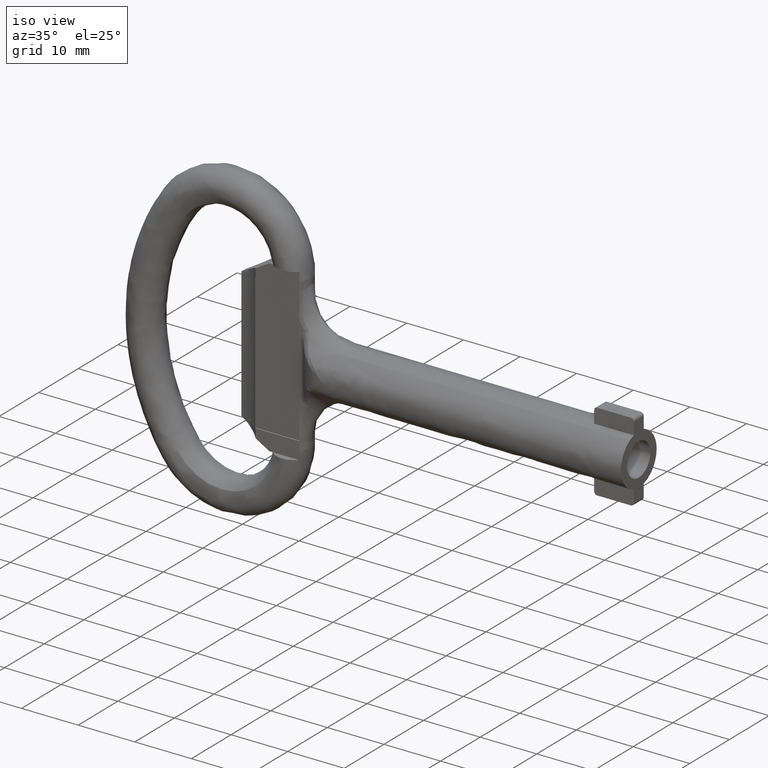
[diagram: clean part render]
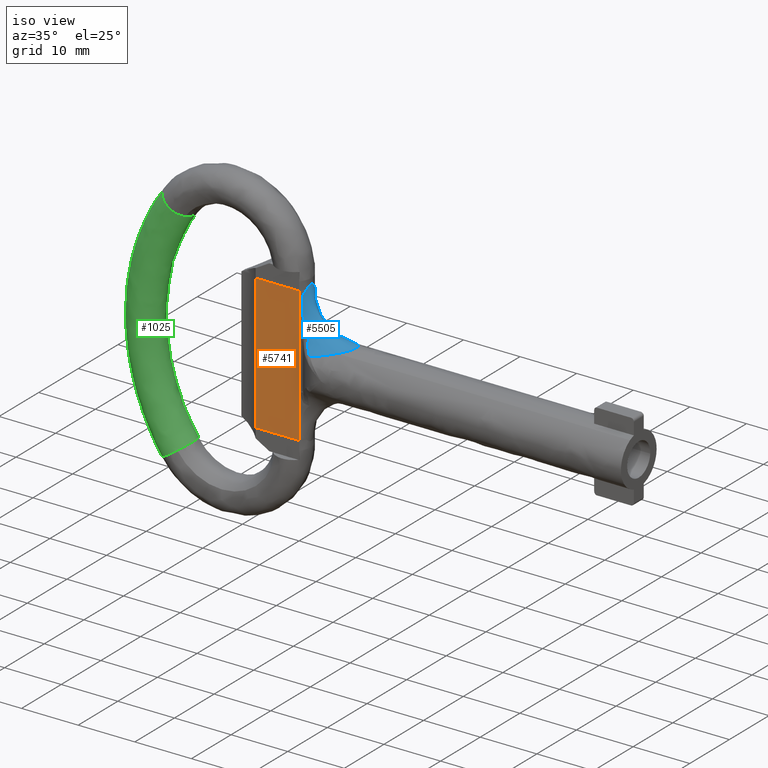
[diagram: same view with three faces highlighted in distinct colors, each labeled with its STEP entity id]
A machine part, iso view with three faces highlighted in distinct colors.
Their STEP definitions:

[orange] entity #5741 — the highlighted face is a freeform B-spline surface patch.
#5706=CARTESIAN_POINT('',(-66.873713587856344,-1.800000601397505,13.198801030982370));
#5707=CARTESIAN_POINT('',(-58.206391010156267,-1.800000601397505,13.198801030982370));
#5708=CARTESIAN_POINT('',(-66.873713587856344,-1.800000601397505,-13.198801245559130));
#5709=CARTESIAN_POINT('',(-58.206391010156267,-1.800000601397505,-13.198801245559130));
#5710=B_SPLINE_SURFACE_WITH_KNOTS('',1,1,((#5706,#5708),(#5707,#5709)),.UNSPECIFIED.,.F.,.F.,.U.,(2,2),(2,2),(0.0,8.667322577700077),(0.0,26.397602276541502),.UNSPECIFIED.);
#5711=CARTESIAN_POINT('',(-58.600002783350703,-1.800000601397510,12.000000569969400));
#5712=VERTEX_POINT('',#5711);
#5713=CARTESIAN_POINT('',(-66.480103646455305,-1.800000601397510,12.000000569969400));
#5714=VERTEX_POINT('',#5713);
#5715=CARTESIAN_POINT('',(-58.600002783350703,-1.800000601397510,12.000000569969400));
#5716=CARTESIAN_POINT('',(-66.480103646455305,-1.800000601397510,12.000000569969400));
#5717=QUASI_UNIFORM_CURVE('',1,(#5715,#5716),.UNSPECIFIED.,.F.,.U.);
#5718=EDGE_CURVE('',#5712,#5714,#5717,.T.);
#5719=ORIENTED_EDGE('',*,*,#5718,.T.);
#5720=CARTESIAN_POINT('',(-66.480103646455404,-1.800000601397510,-12.000000569969400));
#5721=VERTEX_POINT('',#5720);
#5722=CARTESIAN_POINT('',(-66.480103646455305,-1.800000601397510,12.000000569969400));
#5723=CARTESIAN_POINT('',(-66.480103646455404,-1.800000601397510,-12.000000569969400));
#5724=QUASI_UNIFORM_CURVE('',1,(#5722,#5723),.UNSPECIFIED.,.F.,.U.);
#5725=EDGE_CURVE('',#5714,#5721,#5724,.T.);
#5726=ORIENTED_EDGE('',*,*,#5725,.T.);
#5727=CARTESIAN_POINT('',(-58.600002783350597,-1.800000601397510,-12.000000569969441));
#5728=VERTEX_POINT('',#5727);
#5729=CARTESIAN_POINT('',(-66.480103646455404,-1.800000601397510,-12.000000569969400));
#5730=CARTESIAN_POINT('',(-58.600002783350597,-1.800000601397510,-12.000000569969441));
#5731=QUASI_UNIFORM_CURVE('',1,(#5729,#5730),.UNSPECIFIED.,.F.,.U.);
#5732=EDGE_CURVE('',#5721,#5728,#5731,.T.);
#5733=ORIENTED_EDGE('',*,*,#5732,.T.);
#5734=CARTESIAN_POINT('',(-58.600002783350597,-1.800000601397510,-12.000000569969441));
#5735=CARTESIAN_POINT('',(-58.600002783350703,-1.800000601397510,12.000000569969400));
#5736=QUASI_UNIFORM_CURVE('',1,(#5734,#5735),.UNSPECIFIED.,.F.,.U.);
#5737=EDGE_CURVE('',#5728,#5712,#5736,.T.);
#5738=ORIENTED_EDGE('',*,*,#5737,.T.);
#5739=EDGE_LOOP('',(#5719,#5726,#5733,#5738));
#5740=FACE_OUTER_BOUND('',#5739,.T.);
#5741=ADVANCED_FACE('',(#5740),#5710,.F.);

[blue] entity #5505 — the highlighted face is a freeform B-spline surface patch.
#252=CARTESIAN_POINT('',(-51.716841464869127,-2.210718864236529,3.919531743995806));
#253=VERTEX_POINT('',#252);
#254=CARTESIAN_POINT('',(-55.657208279735300,-3.492295393360170,2.837934152079430));
#255=VERTEX_POINT('',#254);
#256=CARTESIAN_POINT('',(-51.716841464869127,-2.210718864236529,3.919531743995806));
#257=CARTESIAN_POINT('',(-51.758727016348267,-2.233126748140558,3.906892245564237));
#258=CARTESIAN_POINT('',(-51.800836128852957,-2.255158331591422,3.894211164004134));
#259=CARTESIAN_POINT('',(-51.975353216815208,-2.344561612454913,3.841768329171790));
#260=CARTESIAN_POINT('',(-52.109706812485882,-2.408889124556252,3.801660298992484));
#261=CARTESIAN_POINT('',(-52.517428694294367,-2.592802140399997,3.680880763554606));
#262=CARTESIAN_POINT('',(-52.793234394122720,-2.702495054317139,3.600405755350944));
#263=CARTESIAN_POINT('',(-53.351056397471922,-2.902941730502905,3.440833016621393));
#264=CARTESIAN_POINT('',(-53.633094206719370,-2.993617517763209,3.361726073217614));
#265=CARTESIAN_POINT('',(-54.202563328610957,-3.159741922471765,3.206084902977868));
#266=CARTESIAN_POINT('',(-54.490002593715062,-3.235159892322479,3.129545223175142));
#267=CARTESIAN_POINT('',(-54.924947237735310,-3.338599005326614,3.017669952653719));
#268=CARTESIAN_POINT('',(-55.070562883010673,-3.371455277661563,2.980868816122473));
#269=CARTESIAN_POINT('',(-55.363050288333760,-3.434131619943636,2.908441207962686));
#270=CARTESIAN_POINT('',(-55.509992554076867,-3.463963423204693,2.872798755652453));
#271=CARTESIAN_POINT('',(-55.657208279735300,-3.492295393360170,2.837934152079430));
#272=B_SPLINE_CURVE_WITH_KNOTS('',3,(#256,#257,#258,#259,#260,#261,#262,#263,#264,#265,#266,#267,#268,#269,#270,#271),.UNSPECIFIED.,.F.,.U.,(4,2,2,2,2,2,2,4),(0.708746275433167,0.718750000000013,0.750000000000012,0.812500000000008,0.875000000000005,0.937500000000002,0.968750000000001,1.0),.UNSPECIFIED.);
#273=EDGE_CURVE('',#253,#255,#272,.T.);
#610=CARTESIAN_POINT('',(-55.657208279735300,3.492295393360175,2.837934152079425));
#611=VERTEX_POINT('',#610);
#612=CARTESIAN_POINT('',(-55.657208279735300,3.492295393360175,2.837934152079425));
#613=CARTESIAN_POINT('',(-55.362394506899463,3.435557928633345,2.907753940137209));
#614=CARTESIAN_POINT('',(-55.069953520831788,3.373085927689157,2.980371454877830));
#615=CARTESIAN_POINT('',(-54.489827694262267,3.235117288528856,3.129590808267064));
#616=CARTESIAN_POINT('',(-54.202139844947062,3.159635231912956,3.206196856273005));
#617=CARTESIAN_POINT('',(-53.631849584772908,2.993238201245855,3.362070472399536));
#618=CARTESIAN_POINT('',(-53.349239450611996,2.902355471265437,3.441343343002151));
#619=CARTESIAN_POINT('',(-52.929736244822230,2.751512331434001,3.561362767434150));
#620=CARTESIAN_POINT('',(-52.790641412384240,2.698797113476191,3.601554916712729));
#621=CARTESIAN_POINT('',(-52.514105099644908,2.587741326233033,3.682159456590595));
#622=CARTESIAN_POINT('',(-52.376692250578031,2.529400515730189,3.722564929123995));
#623=CARTESIAN_POINT('',(-51.970058756868802,2.345733347249856,3.843042293618203));
#624=CARTESIAN_POINT('',(-51.705455261780429,2.211682317124115,3.922661097641239));
#625=CARTESIAN_POINT('',(-51.322279588887383,1.985331376106814,4.039264434144164));
#626=CARTESIAN_POINT('',(-51.196866963924847,1.905623062773154,4.077654871594394));
#627=CARTESIAN_POINT('',(-50.951918933288482,1.735273818388106,4.153010096368730));
#628=CARTESIAN_POINT('',(-50.832322024896150,1.644639771637326,4.189994254079223));
#629=CARTESIAN_POINT('',(-50.601257259339867,1.448568827563796,4.261753124114488));
#630=CARTESIAN_POINT('',(-50.491551984320019,1.344649906907822,4.295980522961588));
#631=CARTESIAN_POINT('',(-50.338810444337803,1.176789339999053,4.343793738088728));
#632=CARTESIAN_POINT('',(-50.289881566249797,1.118822914886335,4.359138570031472));
#633=CARTESIAN_POINT('',(-50.196811611337758,0.998026881385522,4.388370522232296));
#634=CARTESIAN_POINT('',(-50.152504749366187,0.934913366404065,4.402309966204403));
#635=CARTESIAN_POINT('',(-50.071061225644058,0.804687442245157,4.427964978973262));
#636=CARTESIAN_POINT('',(-50.033821943988450,0.737498827645621,4.439712590228536));
#637=CARTESIAN_POINT('',(-49.967611860184242,0.598189113143508,4.460619001021118));
#638=CARTESIAN_POINT('',(-49.938575911640328,0.525688428732510,4.469798448325182));
#639=CARTESIAN_POINT('',(-49.891647969367568,0.378711624828309,4.484643093669145));
#640=CARTESIAN_POINT('',(-49.873541410165210,0.303890886499971,4.490375909950084));
#641=CARTESIAN_POINT('',(-49.855241320890499,0.189455734220496,4.496171198103783));
#642=CARTESIAN_POINT('',(-49.850620072689900,0.150942809484246,4.497635002103153));
#643=CARTESIAN_POINT('',(-49.844502904650263,0.073139415374284,4.499572736906605));
#644=CARTESIAN_POINT('',(-49.843031789826107,0.033862927148166,4.500038806243667));
#645=CARTESIAN_POINT('',(-49.843705056596207,-0.160181046613411,4.499825494484334));
#646=CARTESIAN_POINT('',(-49.869445799426927,-0.311423743708278,4.491665514531241));
#647=CARTESIAN_POINT('',(-49.929326995100062,-0.496089983076521,4.472724230480951));
#648=CARTESIAN_POINT('',(-49.942666203653722,-0.532678824829557,4.468506272077973));
#649=CARTESIAN_POINT('',(-49.971560942232998,-0.604382207873623,4.459374067409812));
#650=CARTESIAN_POINT('',(-49.987157224301612,-0.639626507267026,4.454446930251513));
#651=CARTESIAN_POINT('',(-50.037108312937747,-0.743688185119787,4.438675453746939));
#652=CARTESIAN_POINT('',(-50.074668787004867,-0.810925587744777,4.426827348304191));
#653=CARTESIAN_POINT('',(-50.197838262856152,-1.006386616955616,4.388031804860167));
#654=CARTESIAN_POINT('',(-50.291844417737202,-1.125628212333475,4.358492353597604));
#655=CARTESIAN_POINT('',(-50.444987770880530,-1.293233903870708,4.310558038795509));
#656=CARTESIAN_POINT('',(-50.498101729931172,-1.347185476780064,4.293961818796696));
#657=CARTESIAN_POINT('',(-50.607882865391623,-1.451798199731279,4.259729888928728));
#658=CARTESIAN_POINT('',(-50.664468255882127,-1.502360279589483,4.242119942387284));
#659=CARTESIAN_POINT('',(-50.836856862047647,-1.648156479775521,4.188590313269853));
#660=CARTESIAN_POINT('',(-50.955924753532720,-1.738207301287237,4.151773626478054));
#661=CARTESIAN_POINT('',(-51.200204328041927,-1.907790188242065,4.076631629402232));
#662=CARTESIAN_POINT('',(-51.325436409729832,-1.987286558979085,4.038299722170167));
#663=CARTESIAN_POINT('',(-51.539933750832169,-2.113840152026426,3.973032672943774));
#664=CARTESIAN_POINT('',(-51.627883401559011,-2.163128193833451,3.946375992513904));
#665=CARTESIAN_POINT('',(-51.716841464869127,-2.210718864236529,3.919531743995806));
#666=B_SPLINE_CURVE_WITH_KNOTS('',3,(#612,#613,#614,#615,#616,#617,#618,#619,#620,#621,#622,#623,#624,#625,#626,#627,#628,#629,#630,#631,#632,#633,#634,#635,#636,#637,#638,#639,#640,#641,#642,#643,#644,#645,#646,#647,#648,#649,#650,#651,#652,#653,#654,#655,#656,#657,#658,#659,#660,#661,#662,#663,#664,#665),.UNSPECIFIED.,.F.,.U.,(4,2,2,2,2,2,2,2,2,2,2,2,2,2,2,2,2,2,2,2,2,2,2,2,2,2,4),(0.0,0.062500000000001,0.125000000000003,0.187500000000004,0.218750000000005,0.250000000000006,0.312500000000007,0.343750000000008,0.375000000000010,0.406250000000011,0.421875000000012,0.437500000000013,0.453125000000014,0.468750000000015,0.484375000000016,0.492187500000017,0.500000000000017,0.531250000000019,0.539062500000019,0.546875000000019,0.562500000000019,0.593750000000019,0.609375000000018,0.625000000000018,0.656250000000017,0.687500000000015,0.708746275433167),.UNSPECIFIED.);
#667=EDGE_CURVE('',#611,#253,#666,.T.);
#2122=CARTESIAN_POINT('',(-56.919742780077001,1.834848710550845,5.968211363733940));
#2123=VERTEX_POINT('',#2122);
#2742=CARTESIAN_POINT('',(-55.657208279735300,3.492295393360180,2.837934152079425));
#2743=CARTESIAN_POINT('',(-55.715151457340092,3.456360305276885,2.882155031017486));
#2744=CARTESIAN_POINT('',(-55.770418660261733,3.419826678476374,2.929054979890431));
#2745=CARTESIAN_POINT('',(-55.876014518711692,3.345835246288851,3.027939356135294));
#2746=CARTESIAN_POINT('',(-55.925867378753132,3.308709738143961,3.079482265416023));
#2747=CARTESIAN_POINT('',(-56.067229241892257,3.197554653626994,3.239331969619378));
#2748=CARTESIAN_POINT('',(-56.150812805634523,3.123609221933672,3.353044330409719));
#2749=CARTESIAN_POINT('',(-56.301098290890799,2.976821853562181,3.592318823607944));
#2750=CARTESIAN_POINT('',(-56.367773479276231,2.903973130529443,3.717894412704735));
#2751=CARTESIAN_POINT('',(-56.457411013352072,2.795733300983472,3.913761372606705));
#2752=CARTESIAN_POINT('',(-56.485612863531067,2.759736653746147,3.980470287926663));
#2753=CARTESIAN_POINT('',(-56.538400967408961,2.688713746287730,4.114978989067603));
#2754=CARTESIAN_POINT('',(-56.563034889823662,2.653639680492990,4.182856679648835));
#2755=CARTESIAN_POINT('',(-56.678502215615858,2.480211982731875,4.524986335352386));
#2756=CARTESIAN_POINT('',(-56.746703313326194,2.347708444472496,4.807359826716103));
#2757=CARTESIAN_POINT('',(-56.826629619362173,2.153388150309574,5.238314361281547));
#2758=CARTESIAN_POINT('',(-56.849449601962156,2.089350044468113,5.383218475354243));
#2759=CARTESIAN_POINT('',(-56.888940465024461,1.961847954395462,5.674755221412847));
#2760=CARTESIAN_POINT('',(-56.905607794713418,1.898372002599712,5.821421615449988));
#2761=CARTESIAN_POINT('',(-56.919742780077001,1.834848710550850,5.968211363733940));
#2762=B_SPLINE_CURVE_WITH_KNOTS('',3,(#2742,#2743,#2744,#2745,#2746,#2747,#2748,#2749,#2750,#2751,#2752,#2753,#2754,#2755,#2756,#2757,#2758,#2759,#2760,#2761),.UNSPECIFIED.,.F.,.U.,(4,2,2,2,2,2,2,2,2,4),(0.0,0.062500000000001,0.125000000000003,0.250000000000002,0.375000000000001,0.437500000000002,0.500000000000003,0.750000000000002,0.875000000000001,1.0),.UNSPECIFIED.);
#2763=EDGE_CURVE('',#611,#2123,#2762,.T.);
#2854=CARTESIAN_POINT('',(-58.244986787675103,1.499835680019660,11.225267029916539));
#2855=VERTEX_POINT('',#2854);
#2856=CARTESIAN_POINT('',(-56.919742780077001,1.834848710550845,5.968211363733940));
#2857=CARTESIAN_POINT('',(-57.095470853805011,1.839885874496412,6.125506414306699));
#2858=CARTESIAN_POINT('',(-57.255103787334249,1.842574210938203,6.297113181422742));
#2859=CARTESIAN_POINT('',(-57.468123852349343,1.842608001676888,6.578025815019326));
#2860=CARTESIAN_POINT('',(-57.534797048189702,1.841942576978938,6.675761450450300));
#2861=CARTESIAN_POINT('',(-57.657490232551503,1.839229761120997,6.876220086665457));
#2862=CARTESIAN_POINT('',(-57.713776301872400,1.837184814870234,6.979255501785725));
#2863=CARTESIAN_POINT('',(-57.816817499898796,1.831703563823609,7.190609506818596));
#2864=CARTESIAN_POINT('',(-57.863616665801963,1.828256427482092,7.299119824819985));
#2865=CARTESIAN_POINT('',(-57.947503760071370,1.820074257129576,7.518330581072408));
#2866=CARTESIAN_POINT('',(-58.022026665379833,1.810593077172704,7.740341577831910));
#2867=CARTESIAN_POINT('',(-58.080364298466243,1.798620344776540,7.967180988923685));
#2868=CARTESIAN_POINT('',(-58.131760044157240,1.785449570039277,8.196085228227014));
#2869=CARTESIAN_POINT('',(-58.153990195797043,1.778258338431954,8.311647725170625));
#2870=CARTESIAN_POINT('',(-58.211493778638911,1.755102040942311,8.658877972366387));
#2871=CARTESIAN_POINT('',(-58.237865290672822,1.737517212720162,8.891818098162338));
#2872=CARTESIAN_POINT('',(-58.273842617232653,1.698477385433051,9.359561182161633));
#2873=CARTESIAN_POINT('',(-58.283344647504130,1.677116000784391,9.593199503036219));
#2874=CARTESIAN_POINT('',(-58.290257696191873,1.631167674418540,10.060081354781079));
#2875=CARTESIAN_POINT('',(-58.287640361416081,1.606570579505469,10.293323690973700));
#2876=CARTESIAN_POINT('',(-58.273041239631191,1.554822804737299,10.759496846302429));
#2877=CARTESIAN_POINT('',(-58.261050082614837,1.527662187186967,10.992426587056300));
#2878=CARTESIAN_POINT('',(-58.244986787675103,1.499835680019660,11.225267029916539));
#2879=B_SPLINE_CURVE_WITH_KNOTS('',3,(#2856,#2857,#2858,#2859,#2860,#2861,#2862,#2863,#2864,#2865,#2866,#2867,#2868,#2869,#2870,#2871,#2872,#2873,#2874,#2875,#2876,#2877,#2878),.UNSPECIFIED.,.F.,.U.,(4,2,2,2,2,1,2,2,2,2,2,4),(0.0,0.124999999999999,0.187499999999999,0.249999999999999,0.312499999999999,0.374999999999999,0.437499999999999,0.499999999999999,0.624999999999999,0.749999999999999,0.875000000000000,1.0),.UNSPECIFIED.);
#2880=EDGE_CURVE('',#2123,#2855,#2879,.T.);
#3364=CARTESIAN_POINT('',(-56.919742780077001,-1.834848710550830,5.968211363733969));
#3365=VERTEX_POINT('',#3364);
#4251=CARTESIAN_POINT('',(-58.244986787681299,-1.499835680030444,11.225267029897060));
#4252=VERTEX_POINT('',#4251);
#4253=CARTESIAN_POINT('',(-58.244986787681299,-1.499835680030444,11.225267029897060));
#4254=CARTESIAN_POINT('',(-58.261045980720013,-1.527655081442115,10.992486044929690));
#4255=CARTESIAN_POINT('',(-58.273029584760742,-1.554799909173767,10.759689517792211));
#4256=CARTESIAN_POINT('',(-58.287626125934267,-1.606501737264959,10.293957421307940));
#4257=CARTESIAN_POINT('',(-58.290247711216338,-1.631068691755253,10.061022734121069));
#4258=CARTESIAN_POINT('',(-58.283394829782203,-1.676946843920029,9.594982319450674));
#4259=CARTESIAN_POINT('',(-58.273947041894807,-1.698268102547055,9.361877256177055));
#4260=CARTESIAN_POINT('',(-58.247153473578372,-1.727485453731202,9.012104231301716));
#4261=CARTESIAN_POINT('',(-58.236100479572031,-1.736764707448679,8.895494303829514));
#4262=CARTESIAN_POINT('',(-58.208875762450411,-1.754347733185704,8.662242150052240));
#4263=CARTESIAN_POINT('',(-58.192707955160238,-1.762643295101056,8.545692581501942));
#4264=CARTESIAN_POINT('',(-58.154373607368321,-1.778127141530037,8.313716756605691));
#4265=CARTESIAN_POINT('',(-58.132147411624281,-1.785333742853997,8.197994016477997));
#4266=CARTESIAN_POINT('',(-58.080826180334327,-1.798518270057780,7.969057562680495));
#4267=CARTESIAN_POINT('',(-58.051723310145810,-1.804504465578753,7.855743748981804));
#4268=CARTESIAN_POINT('',(-57.952463810975509,-1.820583061528937,7.519819798990222));
#4269=CARTESIAN_POINT('',(-57.870382022850663,-1.828797608105630,7.301218422789474));
#4270=CARTESIAN_POINT('',(-57.716168493350231,-1.837084936561054,6.983804650879272));
#4271=CARTESIAN_POINT('',(-57.659425083760169,-1.839171967491833,6.879588729621378));
#4272=CARTESIAN_POINT('',(-57.536246890828352,-1.841925126478076,6.677928408698912));
#4273=CARTESIAN_POINT('',(-57.469455426242511,-1.842600639672031,6.579891514905382));
#4274=CARTESIAN_POINT('',(-57.256016217159562,-1.842589313486985,6.298099680950845));
#4275=CARTESIAN_POINT('',(-57.095985949007222,-1.839900639462097,6.125967478518958));
#4276=CARTESIAN_POINT('',(-56.919742780077001,-1.834848710550830,5.968211363733969));
#4277=B_SPLINE_CURVE_WITH_KNOTS('',3,(#4253,#4254,#4255,#4256,#4257,#4258,#4259,#4260,#4261,#4262,#4263,#4264,#4265,#4266,#4267,#4268,#4269,#4270,#4271,#4272,#4273,#4274,#4275,#4276),.UNSPECIFIED.,.F.,.U.,(4,2,2,2,2,2,2,2,2,2,2,4),(0.0,0.125000000000001,0.250000000000001,0.375000000000002,0.437500000000002,0.500000000000001,0.562500000000001,0.625000000000001,0.750000000000001,0.812500000000001,0.875000000000001,1.0),.UNSPECIFIED.);
#4278=EDGE_CURVE('',#4252,#3365,#4277,.T.);
#4375=CARTESIAN_POINT('',(-56.919742780077001,-1.834848710550830,5.968211363733969));
#4376=CARTESIAN_POINT('',(-56.891514544678373,-1.961707734110387,5.675065282426797));
#4377=CARTESIAN_POINT('',(-56.853509088494206,-2.087823218929275,5.383792941916770));
#4378=CARTESIAN_POINT('',(-56.747460185544163,-2.346080707441633,4.810898698217494));
#4379=CARTESIAN_POINT('',(-56.679613732500862,-2.478189589629789,4.529216505177518));
#4380=CARTESIAN_POINT('',(-56.564723130677173,-2.651188499351872,4.187634674362629));
#4381=CARTESIAN_POINT('',(-56.540211050153850,-2.686180314832651,4.119850615505641));
#4382=CARTESIAN_POINT('',(-56.487678961155730,-2.757047967747005,3.985493946195450));
#4383=CARTESIAN_POINT('',(-56.459584272848090,-2.793013950322707,3.918758969726508));
#4384=CARTESIAN_POINT('',(-56.369789688246627,-2.901718908907121,3.721827929716837));
#4385=CARTESIAN_POINT('',(-56.302940338667483,-2.974913720752757,3.595524667019581));
#4386=CARTESIAN_POINT('',(-56.152077300277647,-3.122480901901639,3.354790078403068));
#4387=CARTESIAN_POINT('',(-56.068091981754641,-3.196860293527703,3.240344679390908));
#4388=CARTESIAN_POINT('',(-55.925840336412968,-3.308738954964534,3.079433196670188));
#4389=CARTESIAN_POINT('',(-55.875568971290171,-3.346155780678493,3.027503685063947));
#4390=CARTESIAN_POINT('',(-55.770259583326727,-3.419929758735084,2.928924561632715));
#4391=CARTESIAN_POINT('',(-55.715099269601950,-3.456392670967605,2.882115202555452));
#4392=CARTESIAN_POINT('',(-55.657208279735300,-3.492295393360180,2.837934152079420));
#4393=B_SPLINE_CURVE_WITH_KNOTS('',3,(#4375,#4376,#4377,#4378,#4379,#4380,#4381,#4382,#4383,#4384,#4385,#4386,#4387,#4388,#4389,#4390,#4391,#4392),.UNSPECIFIED.,.F.,.U.,(4,2,2,2,2,2,2,2,4),(0.0,0.249999999999999,0.499999999999999,0.562499999999999,0.624999999999999,0.750000000000000,0.875000000000002,0.937500000000001,1.0),.UNSPECIFIED.);
#4394=EDGE_CURVE('',#3365,#255,#4393,.T.);
#5060=CARTESIAN_POINT('',(-59.479452040074825,-2.672411513768244,7.822655537899967));
#5061=CARTESIAN_POINT('',(-59.364882482535506,-2.613924960654884,8.097576897707215));
#5062=CARTESIAN_POINT('',(-59.255306759372829,-2.548733799908443,8.379722832782504));
#5063=CARTESIAN_POINT('',(-59.098555958042134,-2.441652483407546,8.799470585122144));
#5064=CARTESIAN_POINT('',(-58.996477030788711,-2.367108663102171,9.078512703898074));
#5065=CARTESIAN_POINT('',(-58.898983292399734,-2.285945770909744,9.353964117978629));
#5066=CARTESIAN_POINT('',(-58.827504314251847,-2.222487431252540,9.558404183620770));
#5067=CARTESIAN_POINT('',(-58.780402509763732,-2.179323154553804,9.693984853972165));
#5068=CARTESIAN_POINT('',(-58.688415876699480,-2.089407561337711,9.961870353573836));
#5069=CARTESIAN_POINT('',(-58.621944590768287,-2.017765852260646,10.158598775486491));
#5070=CARTESIAN_POINT('',(-58.535571080906401,-1.918271168278490,10.416266941471177));
#5071=CARTESIAN_POINT('',(-58.493367015261121,-1.866337461949351,10.543210666187564));
#5072=CARTESIAN_POINT('',(-58.412330615802865,-1.759460205283001,10.788457921660566));
#5073=CARTESIAN_POINT('',(-58.373435106420850,-1.704460555609937,10.906956703826594));
#5074=CARTESIAN_POINT('',(-58.261716577755486,-1.534547405925945,11.248896826259800));
#5075=CARTESIAN_POINT('',(-58.193847592822515,-1.414687592215511,11.458872089953404));
#5076=CARTESIAN_POINT('',(-58.072813220601141,-1.159974142087761,11.835238340896559));
#5077=CARTESIAN_POINT('',(-58.019498706482025,-1.024109461591499,12.002090349204565));
#5078=CARTESIAN_POINT('',(-57.933417826611283,-0.744838636062015,12.272137992105744));
#5079=CARTESIAN_POINT('',(-57.900043934015329,-0.600669958365645,12.377224100268331));
#5080=CARTESIAN_POINT('',(-57.865955849369449,-0.377031716668813,12.484518068006558));
#5081=CARTESIAN_POINT('',(-57.857335660329369,-0.301165424104221,12.511698138394605));
#5082=CARTESIAN_POINT('',(-57.845970769799706,-0.150332205429553,12.547531969068439));
#5083=CARTESIAN_POINT('',(-57.843139107200408,-0.074945930048093,12.556449547024345));
#5084=CARTESIAN_POINT('',(-57.843172007314564,0.151059546991094,12.556355605403862));
#5085=CARTESIAN_POINT('',(-57.854536566914582,0.301852467043076,12.520502488414346));
#5086=CARTESIAN_POINT('',(-57.900092192694324,0.601212288119669,12.376995800344559));
#5087=CARTESIAN_POINT('',(-57.933591455787671,0.745454572619430,12.271625729702343));
#5088=CARTESIAN_POINT('',(-57.998022427049023,0.954369995060695,12.069422776751251));
#5089=CARTESIAN_POINT('',(-58.021907006358525,1.022762164983551,11.994616736518898));
#5090=CARTESIAN_POINT('',(-58.074288718499211,1.157136638530362,11.830895068967864));
#5091=CARTESIAN_POINT('',(-58.102916528406041,1.223291085575008,11.741600943465025));
#5092=CARTESIAN_POINT('',(-58.193991878515433,1.415040879041842,11.458398657509376));
#5093=CARTESIAN_POINT('',(-58.261933683664111,1.534856312730117,11.248250520263976));
#5094=CARTESIAN_POINT('',(-58.410479606434471,1.760873230847075,10.793483724887455));
#5095=CARTESIAN_POINT('',(-58.491126336541932,1.867052495373843,10.548811441628706));
#5096=CARTESIAN_POINT('',(-58.664627080342562,2.067191517405901,10.031245478758690));
#5097=CARTESIAN_POINT('',(-58.755973196391217,2.159379241036771,9.762842718524926));
#5098=CARTESIAN_POINT('',(-58.946780124819739,2.329273928794860,9.216695931841523));
#5099=CARTESIAN_POINT('',(-59.095781432343202,2.446203199463204,8.798871337095129));
#5100=CARTESIAN_POINT('',(-59.309025889347453,2.582360635085117,8.239920248843882));
#5101=CARTESIAN_POINT('',(-59.420963033418715,2.644113908485316,7.962248620523423));
#5102=CARTESIAN_POINT('',(-59.478373032105395,2.673471831463719,7.824472728907209));
#5103=CARTESIAN_POINT('',(-59.472534420020040,-2.668825220211685,7.809117540782950));
#5104=CARTESIAN_POINT('',(-59.357637112762959,-2.609793216626427,8.083447821474383));
#5105=CARTESIAN_POINT('',(-59.247842322430479,-2.544035180376463,8.364958640402632));
#5106=CARTESIAN_POINT('',(-59.090944135644122,-2.436138113444686,8.783698543030424));
#5107=CARTESIAN_POINT('',(-58.988818347406621,-2.361057655645868,9.062069186628797));
#5108=CARTESIAN_POINT('',(-58.891397393298966,-2.279401894438706,9.336807858316799));
#5109=CARTESIAN_POINT('',(-58.820015548473677,-2.215594945966634,9.540705772893610));
#5110=CARTESIAN_POINT('',(-58.772991525668253,-2.172204048608162,9.675925784685763));
#5111=CARTESIAN_POINT('',(-58.681213164750218,-2.081871522124970,9.943078849826868));
#5112=CARTESIAN_POINT('',(-58.614959860427859,-2.009966518856090,10.139240135172422));
#5113=CARTESIAN_POINT('',(-58.528931167579557,-1.910169039762005,10.396144305434492));
#5114=CARTESIAN_POINT('',(-58.486928706583093,-1.858112072597905,10.522699869257139));
#5115=CARTESIAN_POINT('',(-58.406339142485990,-1.751059483879162,10.767172531323332));
#5116=CARTESIAN_POINT('',(-58.367688467218642,-1.696006418586284,10.885284718679536));
#5117=CARTESIAN_POINT('',(-58.256752636829781,-1.526056679085965,11.226085043539372));
#5118=CARTESIAN_POINT('',(-58.189477574619801,-1.406329031139576,11.435302575013914));
#5119=CARTESIAN_POINT('',(-58.069674280517560,-1.152295877787582,11.810230954910667));
#5120=CARTESIAN_POINT('',(-58.017000672513156,-1.016980119515471,11.976394437973948));
#5121=CARTESIAN_POINT('',(-57.932045735301017,-0.739216909854078,12.245290457673775));
#5122=CARTESIAN_POINT('',(-57.899166516372588,-0.596001986620476,12.349894917848879));
#5123=CARTESIAN_POINT('',(-57.865598497250708,-0.374021415629189,12.456690496439297));
#5124=CARTESIAN_POINT('',(-57.857113906445854,-0.298744491499970,12.483742678211557));
#5125=CARTESIAN_POINT('',(-57.845928697302419,-0.149110155928362,12.519407880195205));
#5126=CARTESIAN_POINT('',(-57.843143038549236,-0.074338101675542,12.528282220543424));
#5127=CARTESIAN_POINT('',(-57.843175970748696,0.149828560577792,12.528188110269575));
#5128=CARTESIAN_POINT('',(-57.854352628434093,0.299389049047529,12.492510364357951));
#5129=CARTESIAN_POINT('',(-57.899216510742903,0.596536391441240,12.349665439428112));
#5130=CARTESIAN_POINT('',(-57.932219021126109,0.739825961606482,12.244778984519259));
#5131=CARTESIAN_POINT('',(-57.995811976328845,0.947620589368481,12.043432145768163));
#5132=CARTESIAN_POINT('',(-58.019397699116119,1.015687313803737,11.968939196199910));
#5133=CARTESIAN_POINT('',(-58.071167016270543,1.149512227753771,11.805880752965646));
#5134=CARTESIAN_POINT('',(-58.099479480492356,1.215444100775348,11.716939714453780));
#5135=CARTESIAN_POINT('',(-58.189622669325303,1.406679473507162,11.434830339684011));
#5136=CARTESIAN_POINT('',(-58.256970130710428,1.526365619934967,11.225441163391285));
#5137=CARTESIAN_POINT('',(-58.404469781449862,1.752431959963811,10.772205520539394));
#5138=CARTESIAN_POINT('',(-58.484667475423166,1.858798503200375,10.528305983910752));
#5139=CARTESIAN_POINT('',(-58.657467755846262,2.059535449311567,10.012275347355697));
#5140=CARTESIAN_POINT('',(-58.748573429018506,2.152134033389277,9.744618208868378));
#5141=CARTESIAN_POINT('',(-58.939130869327876,2.322990619572133,9.199908190211087));
#5142=CARTESIAN_POINT('',(-59.088119419727136,2.440704948052318,8.783122922553337));
#5143=CARTESIAN_POINT('',(-59.301685802280090,2.577954006826186,8.225455663268139));
#5144=CARTESIAN_POINT('',(-59.413888595731748,2.640250664094471,7.948401107568864));
#5145=CARTESIAN_POINT('',(-59.471456603930051,2.669875250123038,7.810927500403877));
#5146=CARTESIAN_POINT('',(-59.112334405490678,-2.482087154092032,7.104194934505618));
#5147=CARTESIAN_POINT('',(-58.979526640994671,-2.394171967074498,7.346100819492891));
#5148=CARTESIAN_POINT('',(-58.857342667795287,-2.298228387625506,7.592574591906595));
#5149=CARTESIAN_POINT('',(-58.691172122156416,-2.146524054168812,7.955352754840970));
#5150=CARTESIAN_POINT('',(-58.585499293854589,-2.042401500461399,8.196126113747711));
#5151=CARTESIAN_POINT('',(-58.490774699666758,-1.933809976617034,8.430760089013971));
#5152=CARTESIAN_POINT('',(-58.423659258830796,-1.850797865210591,8.603985809124962));
#5153=CARTESIAN_POINT('',(-58.380174455537350,-1.794857895453298,8.718710036414592));
#5154=CARTESIAN_POINT('',(-58.298287404096854,-1.681224714621154,8.944045302908767));
#5155=CARTESIAN_POINT('',(-58.242763588643285,-1.594362383251093,9.107673646487665));
#5156=CARTESIAN_POINT('',(-58.174001830509326,-1.477078581848414,9.320510706458125));
#5157=CARTESIAN_POINT('',(-58.142228700637745,-1.417733721680421,9.424574231394406));
#5158=CARTESIAN_POINT('',(-58.084546336040702,-1.299869672336046,9.623966990607727));
#5159=CARTESIAN_POINT('',(-58.058558783994144,-1.241231965536524,9.719480904028853));
#5160=CARTESIAN_POINT('',(-57.988475260896124,-1.067173313932980,9.993216784181534));
#5161=CARTESIAN_POINT('',(-57.952578339479935,-0.953210386338900,10.157596212522877));
#5162=CARTESIAN_POINT('',(-57.898537519032054,-0.733672631985938,10.446814343921439));
#5163=CARTESIAN_POINT('',(-57.880442219060477,-0.627244855633083,10.571692203551184));
#5164=CARTESIAN_POINT('',(-57.856703067415573,-0.430523277404720,10.771070152456655));
#5165=CARTESIAN_POINT('',(-57.850899419265915,-0.339214985161318,10.846505611115125));
#5166=CARTESIAN_POINT('',(-57.845903578243728,-0.208113248154345,10.923016175090927));
#5167=CARTESIAN_POINT('',(-57.844886402180194,-0.165254320904811,10.942279218076379));
#5168=CARTESIAN_POINT('',(-57.843607345474759,-0.081683522694477,10.967660079762572));
#5169=CARTESIAN_POINT('',(-57.843359985367812,-0.040795814085168,10.973901727394676));
#5170=CARTESIAN_POINT('',(-57.843394687804945,0.081898146660170,10.973800845863218));
#5171=CARTESIAN_POINT('',(-57.844208751721837,0.163535972660236,10.948795016597025));
#5172=CARTESIAN_POINT('',(-57.851045101325880,0.339314539462762,10.846217751501165));
#5173=CARTESIAN_POINT('',(-57.856858164960848,0.430757007851010,10.770615034231707));
#5174=CARTESIAN_POINT('',(-57.874840299843967,0.578244826135003,10.621038887148037));
#5175=CARTESIAN_POINT('',(-57.882237278856635,0.628971193636562,10.565387585682897));
#5176=CARTESIAN_POINT('',(-57.900975810458078,0.733839121030721,10.442132294249090));
#5177=CARTESIAN_POINT('',(-57.912356248624114,0.788230633582344,10.374308191630309));
#5178=CARTESIAN_POINT('',(-57.952769033861301,0.953409965845714,10.157198274978455));
#5179=CARTESIAN_POINT('',(-57.988716083467317,1.067488132891055,9.992714857617541));
#5180=CARTESIAN_POINT('',(-58.081682252681176,1.299051541225772,9.629353770994994));
#5181=CARTESIAN_POINT('',(-58.138859069288522,1.416878507509727,9.430440660572701));
#5182=CARTESIAN_POINT('',(-58.276556129717470,1.652194596263726,9.002970125287526));
#5183=CARTESIAN_POINT('',(-58.356071508358774,1.767830341935831,8.777945247002096));
#5184=CARTESIAN_POINT('',(-58.535753513002206,1.991645344736894,8.314620093251014));
#5185=CARTESIAN_POINT('',(-58.685747686825920,2.151963456883933,7.956092588994590));
#5186=CARTESIAN_POINT('',(-58.918160559741274,2.347704262338782,7.469669847620734));
#5187=CARTESIAN_POINT('',(-59.045107119354832,2.438864627054838,7.226547796040841));
#5188=CARTESIAN_POINT('',(-59.111315196852800,2.482599703864101,7.105621592687694));
#5189=CARTESIAN_POINT('',(-58.480735734462407,-2.422709687497368,6.082300399992155));
#5190=CARTESIAN_POINT('',(-58.301842526222224,-2.310609946679148,6.278366121657176));
#5191=CARTESIAN_POINT('',(-58.138518110483709,-2.189032562337807,6.475793098606407));
#5192=CARTESIAN_POINT('',(-57.918986456204138,-1.999283297121095,6.761317782646993));
#5193=CARTESIAN_POINT('',(-57.779952483694423,-1.869513349206606,6.949653138639722));
#5194=CARTESIAN_POINT('',(-57.657494526600544,-1.736443313315507,7.129340357338880));
#5195=CARTESIAN_POINT('',(-57.571548282449847,-1.635589748307000,7.260561130812438));
#5196=CARTESIAN_POINT('',(-57.516059981478449,-1.567879701534058,7.347077558183845));
#5197=CARTESIAN_POINT('',(-57.412975668853697,-1.431639541368178,7.514966938673098));
#5198=CARTESIAN_POINT('',(-57.344827326758285,-1.329269220069772,7.634286823853779));
#5199=CARTESIAN_POINT('',(-57.261932015303202,-1.193070050327701,7.787155878091104));
#5200=CARTESIAN_POINT('',(-57.224386794558590,-1.125374178520317,7.860679714215934));
#5201=CARTESIAN_POINT('',(-57.158102675126429,-0.993595896422010,7.999045100034575));
#5202=CARTESIAN_POINT('',(-57.129234338990614,-0.929367136588392,8.064042508865430));
#5203=CARTESIAN_POINT('',(-57.054246337188701,-0.743691789808950,8.246927057735718));
#5204=CARTESIAN_POINT('',(-57.020446239579762,-0.628647413865124,8.351221066439647));
#5205=CARTESIAN_POINT('',(-56.977926666994748,-0.425962746377459,8.526130446241146));
#5206=CARTESIAN_POINT('',(-56.969411404585301,-0.337705952204442,8.596513498667454));
#5207=CARTESIAN_POINT('',(-56.965789001963941,-0.197162106002230,8.703600598583147));
#5208=CARTESIAN_POINT('',(-56.970667369082484,-0.143814575871995,8.740599064569507));
#5209=CARTESIAN_POINT('',(-56.977325355571189,-0.081119107541158,8.777267710907610));
#5210=CARTESIAN_POINT('',(-56.979484632049100,-0.062909692615313,8.786229082473041));
#5211=CARTESIAN_POINT('',(-56.982444252205568,-0.029920321154067,8.797986259277804));
#5212=CARTESIAN_POINT('',(-56.983294291792546,-0.015114429367732,8.800813184712956));
#5213=CARTESIAN_POINT('',(-56.983344598646077,0.029453076121343,8.800724580323788));
#5214=CARTESIAN_POINT('',(-56.979560432739184,0.058904674664287,8.789648916951622));
#5215=CARTESIAN_POINT('',(-56.970931074365161,0.143191791305110,8.740232218778560));
#5216=CARTESIAN_POINT('',(-56.966122585483213,0.196624775855099,8.703055942716615));
#5217=CARTESIAN_POINT('',(-56.969227541183294,0.302122065494290,8.622356056211032));
#5218=CARTESIAN_POINT('',(-56.971749649029483,0.341251543381200,8.591656398957838));
#5219=CARTESIAN_POINT('',(-56.981818611682137,0.427828048570293,8.521272520450792));
#5220=CARTESIAN_POINT('',(-56.989390399202598,0.475535243801496,8.481481234505527));
#5221=CARTESIAN_POINT('',(-57.021009526152426,0.627823998739928,8.350508687273408));
#5222=CARTESIAN_POINT('',(-57.054948848644450,0.742877790816419,8.246058220796522));
#5223=CARTESIAN_POINT('',(-57.154272588104028,0.989860985541351,8.003738943385796));
#5224=CARTESIAN_POINT('',(-57.219819091681437,1.122267046422810,7.865825349887770));
#5225=CARTESIAN_POINT('',(-57.386004815591654,1.394937132867085,7.558891874279154));
#5226=CARTESIAN_POINT('',(-57.485549201923128,1.532971100535842,7.392276385336241));
#5227=CARTESIAN_POINT('',(-57.716497868937793,1.804990220130646,7.040710126933409));
#5228=CARTESIAN_POINT('',(-57.912579359334345,2.003337344427644,6.762833497162369));
#5229=CARTESIAN_POINT('',(-58.221591245465298,2.250151099520884,6.376409726178751));
#5230=CARTESIAN_POINT('',(-58.391498353057230,2.366005659044570,6.180870771753537));
#5231=CARTESIAN_POINT('',(-58.480344932555788,2.421685836126049,6.083126324783099));
#5232=CARTESIAN_POINT('',(-58.026608596249439,-2.458101815838897,5.409853242982178));
#5233=CARTESIAN_POINT('',(-57.810387136108076,-2.336728460891155,5.576620887418603));
#5234=CARTESIAN_POINT('',(-57.611885993038378,-2.205201907959485,5.742929534838939));
#5235=CARTESIAN_POINT('',(-57.343225334480451,-2.000327849372273,5.980014910198761));
#5236=CARTESIAN_POINT('',(-57.172223734506275,-1.860215643473633,6.135350235295767));
#5237=CARTESIAN_POINT('',(-57.020219695453292,-1.716941580419016,6.280841743390731));
#5238=CARTESIAN_POINT('',(-56.912831137631429,-1.608571574541384,6.386028327799465));
#5239=CARTESIAN_POINT('',(-56.843244350106815,-1.535852839598786,6.455042136838135));
#5240=CARTESIAN_POINT('',(-56.713010504088153,-1.389842234406522,6.587412504779794));
#5241=CARTESIAN_POINT('',(-56.625822330550299,-1.280569909109853,6.679569912035597));
#5242=CARTESIAN_POINT('',(-56.518645210516432,-1.135600146524797,6.795768531287637));
#5243=CARTESIAN_POINT('',(-56.469514619815691,-1.063808206677618,6.850684396092897));
#5244=CARTESIAN_POINT('',(-56.381529232447910,-0.924713212157053,6.952004579654529));
#5245=CARTESIAN_POINT('',(-56.342529632964315,-0.857251757682886,6.998545442190675));
#5246=CARTESIAN_POINT('',(-56.239133518395043,-0.663499326942380,7.126494637251525));
#5247=CARTESIAN_POINT('',(-56.189394950182923,-0.545226012768891,7.194867301677170));
#5248=CARTESIAN_POINT('',(-56.120440560082265,-0.342391045138856,7.301756709327722));
#5249=CARTESIAN_POINT('',(-56.101521282453618,-0.257313601255515,7.339973248229478));
#5250=CARTESIAN_POINT('',(-56.082290593858652,-0.130245880030916,7.392775260086478));
#5251=CARTESIAN_POINT('',(-56.081946640548814,-0.087174680907524,7.407435129250609));
#5252=CARTESIAN_POINT('',(-56.083483490230989,-0.043935359602753,7.420893137345196));
#5253=CARTESIAN_POINT('',(-56.084406270826193,-0.032869606771284,7.423868703460648));
#5254=CARTESIAN_POINT('',(-56.085746707929935,-0.014662313397290,7.427699760056121));
#5255=CARTESIAN_POINT('',(-56.086211391975382,-0.007537422544426,7.428536173715999));
#5256=CARTESIAN_POINT('',(-56.086270339680340,0.014018653160421,7.428461463081832));
#5257=CARTESIAN_POINT('',(-56.083973707513650,0.028109963627167,7.425453824569326));
#5258=CARTESIAN_POINT('',(-56.082249745527307,0.086382304989222,7.407085694480162));
#5259=CARTESIAN_POINT('',(-56.082687813397989,0.129543975450004,7.392297672080790));
#5260=CARTESIAN_POINT('',(-56.097573624495837,0.224980673958603,7.352235534742080));
#5261=CARTESIAN_POINT('',(-56.104609691316334,0.261610563548085,7.336245239451672));
#5262=CARTESIAN_POINT('',(-56.125140212662849,0.344916041199019,7.297150979183673));
#5263=CARTESIAN_POINT('',(-56.138670261261673,0.391861527925412,7.273994260736341));
#5264=CARTESIAN_POINT('',(-56.190051250253887,0.544253414599586,7.194164602091692));
#5265=CARTESIAN_POINT('',(-56.239935038601956,0.662588011459568,7.125656454610266));
#5266=CARTESIAN_POINT('',(-56.376805898605653,0.920362671914512,6.956303899044850));
#5267=CARTESIAN_POINT('',(-56.463898280562873,1.060303341821526,6.855382316170128));
#5268=CARTESIAN_POINT('',(-56.678824709939505,1.350402288695169,6.622124797175087));
#5269=CARTESIAN_POINT('',(-56.805076703070355,1.498268505505078,6.491538635728108));
#5270=CARTESIAN_POINT('',(-57.093478135895715,1.790871063325227,6.209491598786357));
#5271=CARTESIAN_POINT('',(-57.335591914143727,2.004579679128957,5.981898906258404));
#5272=CARTESIAN_POINT('',(-57.712459574937029,2.271475318484487,5.658598184361873));
#5273=CARTESIAN_POINT('',(-57.918465330851554,2.396728549612742,5.493306906202114));
#5274=CARTESIAN_POINT('',(-58.025848335982893,2.456943478971666,5.410310571767974));
#5275=CARTESIAN_POINT('',(-57.309112314800153,-2.624637412668113,4.435596581832562));
#5276=CARTESIAN_POINT('',(-57.029524354941280,-2.500194603203016,4.563659758075862));
#5277=CARTESIAN_POINT('',(-56.769429634346032,-2.365241898994126,4.689628411817725));
#5278=CARTESIAN_POINT('',(-56.411067311815778,-2.154743178739745,4.865438462768876));
#5279=CARTESIAN_POINT('',(-56.180673740623412,-2.010647404526924,4.979324156476869));
#5280=CARTESIAN_POINT('',(-55.970895141560582,-1.863015328849921,5.083103242305019));
#5281=CARTESIAN_POINT('',(-55.820611269230945,-1.751144568315615,5.156821336100934));
#5282=CARTESIAN_POINT('',(-55.722499013229381,-1.676017851804267,5.204751945347116));
#5283=CARTESIAN_POINT('',(-55.535838149328448,-1.524941016844248,5.294870516432110));
#5284=CARTESIAN_POINT('',(-55.407167448783987,-1.411592178627277,5.355414960501014));
#5285=CARTESIAN_POINT('',(-55.245271336057208,-1.260878382691957,5.429515467026442));
#5286=CARTESIAN_POINT('',(-55.169031276403103,-1.186057070917143,5.463369694036344));
#5287=CARTESIAN_POINT('',(-55.028286571983976,-1.040644595069498,5.523370769126568));
#5288=CARTESIAN_POINT('',(-54.963604367206074,-0.969892053505519,5.549629394734025));
#5289=CARTESIAN_POINT('',(-54.785205505944127,-0.765804619626012,5.617958703286615));
#5290=CARTESIAN_POINT('',(-54.688727285218867,-0.640081068914407,5.648633795504963));
#5291=CARTESIAN_POINT('',(-54.534309670902417,-0.421023528035817,5.686031202049927));
#5292=CARTESIAN_POINT('',(-54.476718120480527,-0.327110392029057,5.692485371705090));
#5293=CARTESIAN_POINT('',(-54.393743761440469,-0.181496397929620,5.692685580245483));
#5294=CARTESIAN_POINT('',(-54.368160837533573,-0.128679484087048,5.686366324528119));
#5295=CARTESIAN_POINT('',(-54.343698177684971,-0.070112096207714,5.678191668687210));
#5296=CARTESIAN_POINT('',(-54.337979821464607,-0.053813098621987,5.675634415676438));
#5297=CARTESIAN_POINT('',(-54.330535412488366,-0.025154993790577,5.672150761127801));
#5298=CARTESIAN_POINT('',(-54.328811421359866,-0.012791900591569,5.671166935472927));
#5299=CARTESIAN_POINT('',(-54.328870466838339,0.024484972077500,5.671127290238427));
#5300=CARTESIAN_POINT('',(-54.335350947569658,0.049045155319441,5.675485390287817));
#5301=CARTESIAN_POINT('',(-54.368431853935846,0.127920080312639,5.686139095714193));
#5302=CARTESIAN_POINT('',(-54.394159030878249,0.180872855354922,5.692389789940651));
#5303=CARTESIAN_POINT('',(-54.456850097181679,0.290278532620926,5.691806895555629));
#5304=CARTESIAN_POINT('',(-54.481373647603213,0.331429011665698,5.690223209567262));
#5305=CARTESIAN_POINT('',(-54.539817911224198,0.423515324909953,5.682228186653793));
#5306=CARTESIAN_POINT('',(-54.573821012272518,0.474738405875095,5.675808497993180));
#5307=CARTESIAN_POINT('',(-54.689302137409193,0.639342168953239,5.648118410336719));
#5308=CARTESIAN_POINT('',(-54.785945805615242,0.765137574909715,5.617330536920013));
#5309=CARTESIAN_POINT('',(-55.022229727075931,1.036608530851215,5.527007629620151));
#5310=CARTESIAN_POINT('',(-55.161896735205218,1.182760574618649,5.467336895066367));
#5311=CARTESIAN_POINT('',(-55.486803569787483,1.484249596656466,5.318601004688982));
#5312=CARTESIAN_POINT('',(-55.669516249451348,1.637138948554165,5.230544003174150));
#5313=CARTESIAN_POINT('',(-56.072757732671676,1.938981029165878,5.032574495198063));
#5314=CARTESIAN_POINT('',(-56.402290206092871,2.159302747986224,4.867451906665596));
#5315=CARTESIAN_POINT('',(-56.900690190442361,2.433515846318005,4.625404302158520));
#5316=CARTESIAN_POINT('',(-57.168994208820905,2.562031493626627,4.499551882546806));
#5317=CARTESIAN_POINT('',(-57.307964801729803,2.623739518184997,4.435923174580635));
#5318=CARTESIAN_POINT('',(-56.300674407039494,-3.134768757220718,3.286365457348339));
#5319=CARTESIAN_POINT('',(-55.926321690150765,-3.033715223429270,3.385676503229236));
#5320=CARTESIAN_POINT('',(-55.571309328415524,-2.922995459682074,3.484653538957751));
#5321=CARTESIAN_POINT('',(-55.069677280739263,-2.746808863026790,3.625619287334229));
#5322=CARTESIAN_POINT('',(-54.743880822553542,-2.625537355170529,3.717646164225043));
#5323=CARTESIAN_POINT('',(-54.437329838990166,-2.498167697234730,3.803967210136185));
#5324=CARTESIAN_POINT('',(-54.213974698796441,-2.400398054949885,3.866304713225421));
#5325=CARTESIAN_POINT('',(-54.067066677320000,-2.334415866197063,3.907126886017251));
#5326=CARTESIAN_POINT('',(-53.782160125206573,-2.199669941148880,3.985407980316147));
#5327=CARTESIAN_POINT('',(-53.578910796607012,-2.095754564811355,4.040011764418837));
#5328=CARTESIAN_POINT('',(-53.316839379789698,-1.954783042498158,4.108895287635923));
#5329=CARTESIAN_POINT('',(-53.189971982321474,-1.883051097137048,4.141491461790855));
#5330=CARTESIAN_POINT('',(-52.948681910158562,-1.739547954448109,4.201774874698963));
#5331=CARTESIAN_POINT('',(-52.834032729392476,-1.667643113989726,4.229547328176836));
#5332=CARTESIAN_POINT('',(-52.507436949375936,-1.452345167216977,4.306054459455836));
#5333=CARTESIAN_POINT('',(-52.313964738982683,-1.309103198155792,4.347568103281700));
#5334=CARTESIAN_POINT('',(-51.975877787767487,-1.026794083718003,4.413600931366675));
#5335=CARTESIAN_POINT('',(-51.831260646354636,-0.886633489053084,4.438083669892494));
#5336=CARTESIAN_POINT('',(-51.601363877424205,-0.619888449966025,4.473000549737389));
#5337=CARTESIAN_POINT('',(-51.514977091606703,-0.492131085086849,4.483639670414343));
#5338=CARTESIAN_POINT('',(-51.427387716525139,-0.304268544452269,4.493719052341847));
#5339=CARTESIAN_POINT('',(-51.405380919285030,-0.242105938280867,4.496062007803197));
#5340=CARTESIAN_POINT('',(-51.376376248754546,-0.120115551472916,4.499105761554304));
#5341=CARTESIAN_POINT('',(-51.369221903812182,-0.060012522688198,4.499809922004555));
#5342=CARTESIAN_POINT('',(-51.369325494323384,0.120319369687217,4.499782970136709));
#5343=CARTESIAN_POINT('',(-51.397853213398456,0.240367098656026,4.497156996954089));
#5344=CARTESIAN_POINT('',(-51.515255721237153,0.492149471757810,4.483519174075676));
#5345=CARTESIAN_POINT('',(-51.601912295271006,0.620001148709572,4.472834336064614));
#5346=CARTESIAN_POINT('',(-51.774389198667983,0.819925875365983,4.446468339856473));
#5347=CARTESIAN_POINT('',(-51.838733507258418,0.887708130975859,4.436093917626629));
#5348=CARTESIAN_POINT('',(-51.981722613278940,1.025981996685005,4.411276698159279));
#5349=CARTESIAN_POINT('',(-52.060663515873273,1.096729610138762,4.396774469217731));
#5350=CARTESIAN_POINT('',(-52.314502818731562,1.309071286033327,4.347350918610522));
#5351=CARTESIAN_POINT('',(-52.508126484036914,1.452416320444540,4.305780085225985));
#5352=CARTESIAN_POINT('',(-52.941705714936539,1.738796553941079,4.204323037166204));
#5353=CARTESIAN_POINT('',(-53.181603824057710,1.882273372457913,4.144326535534456));
#5354=CARTESIAN_POINT('',(-53.707864496002401,2.165064323429136,4.006052556174768));
#5355=CARTESIAN_POINT('',(-53.989780610650939,2.302197484343883,3.928807508538893));
#5356=CARTESIAN_POINT('',(-54.587588610668746,2.564968904251618,3.761876824069178));
#5357=CARTESIAN_POINT('',(-55.060839835659273,2.752250817292158,3.626779190178003));
#5358=CARTESIAN_POINT('',(-55.749030967593377,2.979085551354715,3.434700646170628));
#5359=CARTESIAN_POINT('',(-56.112376803231449,3.084073661705957,3.336243818982394));
#5360=CARTESIAN_POINT('',(-56.299065854492895,3.134319254612550,3.286775270995635));
#5361=CARTESIAN_POINT('',(-55.781648362689637,-3.525241741336505,2.796927847456707));
#5362=CARTESIAN_POINT('',(-55.358454689403800,-3.447090176386312,2.895456594298671));
#5363=CARTESIAN_POINT('',(-54.954046962457689,-3.359953747446830,2.996677615706170));
#5364=CARTESIAN_POINT('',(-54.376935938155768,-3.217073847462542,3.147284826738264));
#5365=CARTESIAN_POINT('',(-54.001477085241198,-3.117657106160321,3.247430895408610));
#5366=CARTESIAN_POINT('',(-53.643695714172281,-3.009586167649494,3.346364247762918));
#5367=CARTESIAN_POINT('',(-53.381676918838345,-2.925167552060699,3.419797334453787));
#5368=CARTESIAN_POINT('',(-53.209126660893574,-2.867734808218804,3.468513480266424));
#5369=CARTESIAN_POINT('',(-52.872505047114352,-2.748240012401149,3.564794408130908));
#5370=CARTESIAN_POINT('',(-52.629603238814504,-2.653251033497110,3.635543184616753));
#5371=CARTESIAN_POINT('',(-52.314395504427935,-2.521315747635582,3.728222590145405));
#5372=CARTESIAN_POINT('',(-52.160617373531274,-2.452513329156290,3.773902206289954));
#5373=CARTESIAN_POINT('',(-51.865813233357812,-2.310996110046451,3.862174128481474));
#5374=CARTESIAN_POINT('',(-51.724530813533342,-2.238227731552213,3.904843355334891));
#5375=CARTESIAN_POINT('',(-51.319366345397469,-2.013575016880735,4.027998133766083));
#5376=CARTESIAN_POINT('',(-51.074017475304416,-1.855376950248138,4.103678387537089));
#5377=CARTESIAN_POINT('',(-50.637561215619627,-1.519926536860009,4.239461752244144));
#5378=CARTESIAN_POINT('',(-50.445980056821654,-1.341305857186075,4.299688471824474));
#5379=CARTESIAN_POINT('',(-50.137266361757625,-0.974821180474958,4.397243431180550));
#5380=CARTESIAN_POINT('',(-50.017922562286927,-0.785904504955586,4.435190402839557));
#5381=CARTESIAN_POINT('',(-49.896311318026314,-0.493137443916600,4.473994906068557));
#5382=CARTESIAN_POINT('',(-49.865500805540364,-0.393899867224629,4.483830400911043));
#5383=CARTESIAN_POINT('',(-49.824910008436468,-0.196604195760642,4.496801168991205));
#5384=CARTESIAN_POINT('',(-49.814868583480816,-0.098010901866443,4.500014909317285));
#5385=CARTESIAN_POINT('',(-49.814973591801085,0.197547112079089,4.499980227935913));
#5386=CARTESIAN_POINT('',(-49.855466356076803,0.394741136058136,4.487015888738176));
#5387=CARTESIAN_POINT('',(-50.018199343528160,0.786602914949487,4.435119148254894));
#5388=CARTESIAN_POINT('',(-50.137847522055473,0.975623633962934,4.397027651284414));
#5389=CARTESIAN_POINT('',(-50.369036874538686,1.249789271154622,4.324009049273434));
#5390=CARTESIAN_POINT('',(-50.454731358873374,1.339656762312916,4.297004602792392));
#5391=CARTESIAN_POINT('',(-50.643108139772892,1.516268908966095,4.237897607703293));
#5392=CARTESIAN_POINT('',(-50.746149771747838,1.603347058114791,4.205685161745890));
#5393=CARTESIAN_POINT('',(-51.074561021793890,1.855850493974383,4.103510006568713));
#5394=CARTESIAN_POINT('',(-51.320137708660475,2.013972379953661,4.027761420839287));
#5395=CARTESIAN_POINT('',(-51.858943795500416,2.312873497825750,3.863997845783310));
#5396=CARTESIAN_POINT('',(-52.152328217734357,2.453323059859342,3.775882135318013));
#5397=CARTESIAN_POINT('',(-52.785471444536078,2.718552098212936,3.589699303851964));
#5398=CARTESIAN_POINT('',(-53.119839957132243,2.840794489599417,3.493188571510973));
#5399=CARTESIAN_POINT('',(-53.820048184492641,3.066367911949174,3.296933905800919));
#5400=CARTESIAN_POINT('',(-54.368973310142970,3.222016032433051,3.146709631645297));
#5401=CARTESIAN_POINT('',(-55.155561263097781,3.403519764061486,2.946056168513562));
#5402=CARTESIAN_POINT('',(-55.568300537830694,3.485815947620379,2.846607754697489));
#5403=CARTESIAN_POINT('',(-55.779832007931155,3.524905168712498,2.797350001717830));
#5404=CARTESIAN_POINT('',(-55.771678954973737,-3.532741912904144,2.787526771850529));
#5405=CARTESIAN_POINT('',(-55.347571512124993,-3.455012511879922,2.886061524383548));
#5406=CARTESIAN_POINT('',(-54.942246109088508,-3.368307538260496,2.987348467137316));
#5407=CARTESIAN_POINT('',(-54.363743818814903,-3.226029270526195,3.138175733775072));
#5408=CARTESIAN_POINT('',(-53.987377292645796,-3.127003484784692,3.238500528504055));
#5409=CARTESIAN_POINT('',(-53.628665712118618,-3.019271513100565,3.337698071184618));
#5410=CARTESIAN_POINT('',(-53.365949030568579,-2.935084094212697,3.411359707520166));
#5411=CARTESIAN_POINT('',(-53.192938048083292,-2.877798092004908,3.460237210989865));
#5412=CARTESIAN_POINT('',(-52.855392077242961,-2.758560037351014,3.556881576595467));
#5413=CARTESIAN_POINT('',(-52.611785535121847,-2.663714772890345,3.627951649872550));
#5414=CARTESIAN_POINT('',(-52.295639179836961,-2.531915913460478,3.721099976248950));
#5415=CARTESIAN_POINT('',(-52.141388109008766,-2.463151392853258,3.767035310305520));
#5416=CARTESIAN_POINT('',(-51.845648139940721,-2.321637571645185,3.855850110695481));
#5417=CARTESIAN_POINT('',(-51.703902276762044,-2.248836389001364,3.898806260898358));
#5418=CARTESIAN_POINT('',(-51.297380056099605,-2.023961067840987,4.022852457408768));
#5419=CARTESIAN_POINT('',(-51.051140957009494,-1.865455476851544,4.099178722343562));
#5420=CARTESIAN_POINT('',(-50.613010413622028,-1.528972824911463,4.236267249093219));
#5421=CARTESIAN_POINT('',(-50.420635505703146,-1.349624364760188,4.297156447483347));
#5422=CARTESIAN_POINT('',(-50.110599057445171,-0.981285981510175,4.395863579010344));
#5423=CARTESIAN_POINT('',(-49.990704331540023,-0.791245654908847,4.434309537568092));
#5424=CARTESIAN_POINT('',(-49.868526592629813,-0.496564882620965,4.473636968353351));
#5425=CARTESIAN_POINT('',(-49.837569746333571,-0.396653175861262,4.483608538356124));
#5426=CARTESIAN_POINT('',(-49.796786678942219,-0.197990700532690,4.496759393788937));
#5427=CARTESIAN_POINT('',(-49.786697398384369,-0.098699586581298,4.500018624518621));
#5428=CARTESIAN_POINT('',(-49.786802386445089,0.198946794214499,4.499983803052950));
#5429=CARTESIAN_POINT('',(-49.827494001067066,0.397540826264260,4.486831972052253));
#5430=CARTESIAN_POINT('',(-49.990980962433440,0.791956451496786,4.434239174482762));
#5431=CARTESIAN_POINT('',(-50.111180578655286,0.982101055494810,4.395646884115247));
#5432=CARTESIAN_POINT('',(-50.343353655474012,1.257645148696777,4.321771070417492));
#5433=CARTESIAN_POINT('',(-50.429407557279866,1.347926299671507,4.294459613814775));
#5434=CARTESIAN_POINT('',(-50.618551044959410,1.525263300128730,4.234716940791894));
#5435=CARTESIAN_POINT('',(-50.722001273780748,1.612653959976574,4.202174723172206));
#5436=CARTESIAN_POINT('',(-51.051684436009822,1.865938420267626,4.099011208676934));
#5437=CARTESIAN_POINT('',(-51.298152740204344,2.024364559164909,4.022616396161068));
#5438=CARTESIAN_POINT('',(-51.838781257457477,2.323563611702920,3.857660515761771));
#5439=CARTESIAN_POINT('',(-52.133100876372310,2.463990530463834,3.768999424591767));
#5440=CARTESIAN_POINT('',(-52.768132166362719,2.728956641565972,3.581872635113593));
#5441=CARTESIAN_POINT('',(-53.103436586894674,2.850950131884118,3.484974656368988));
#5442=CARTESIAN_POINT('',(-53.805491042922974,3.075877425831452,3.288115816678557));
#5443=CARTESIAN_POINT('',(-54.355796662770665,3.230962744492952,3.137566672629848));
#5444=CARTESIAN_POINT('',(-55.144201401745384,3.411644043654934,2.936702812352750));
#5445=CARTESIAN_POINT('',(-55.557861755725185,3.493523874710612,2.837213475786407));
#5446=CARTESIAN_POINT('',(-55.769858704410183,3.532407437484340,2.787949253300384));
#5454=(BOUNDED_SURFACE()B_SPLINE_SURFACE(3,2,((#5060,#5103,#5146,#5189,#5232,#5275,#5318,#5361,#5404),(#5061,#5104,#5147,#5190,#5233,#5276,#5319,#5362,#5405),(#5062,#5105,#5148,#5191,#5234,#5277,#5320,#5363,#5406),(#5063,#5106,#5149,#5192,#5235,#5278,#5321,#5364,#5407),(#5064,#5107,#5150,#5193,#5236,#5279,#5322,#5365,#5408),(#5065,#5108,#5151,#5194,#5237,#5280,#5323,#5366,#5409),(#5066,#5109,#5152,#5195,#5238,#5281,#5324,#5367,#5410),(#5067,#5110,#5153,#5196,#5239,#5282,#5325,#5368,#5411),(#5068,#5111,#5154,#5197,#5240,#5283,#5326,#5369,#5412),(#5069,#5112,#5155,#5198,#5241,#5284,#5327,#5370,#5413),(#5070,#5113,#5156,#5199,#5242,#5285,#5328,#5371,#5414),(#5071,#5114,#5157,#5200,#5243,#5286,#5329,#5372,#5415),(#5072,#5115,#5158,#5201,#5244,#5287,#5330,#5373,#5416),(#5073,#5116,#5159,#5202,#5245,#5288,#5331,#5374,#5417),(#5074,#5117,#5160,#5203,#5246,#5289,#5332,#5375,#5418),(#5075,#5118,#5161,#5204,#5247,#5290,#5333,#5376,#5419),(#5076,#5119,#5162,#5205,#5248,#5291,#5334,#5377,#5420),(#5077,#5120,#5163,#5206,#5249,#5292,#5335,#5378,#5421),(#5078,#5121,#5164,#5207,#5250,#5293,#5336,#5379,#5422),(#5079,#5122,#5165,#5208,#5251,#5294,#5337,#5380,#5423),(#5080,#5123,#5166,#5209,#5252,#5295,#5338,#5381,#5424),(#5081,#5124,#5167,#5210,#5253,#5296,#5339,#5382,#5425),(#5082,#5125,#5168,#5211,#5254,#5297,#5340,#5383,#5426),(#5083,#5126,#5169,#5212,#5255,#5298,#5341,#5384,#5427),(#5084,#5127,#5170,#5213,#5256,#5299,#5342,#5385,#5428),(#5085,#5128,#5171,#5214,#5257,#5300,#5343,#5386,#5429),(#5086,#5129,#5172,#5215,#5258,#5301,#5344,#5387,#5430),(#5087,#5130,#5173,#5216,#5259,#5302,#5345,#5388,#5431),(#5088,#5131,#5174,#5217,#5260,#5303,#5346,#5389,#5432),(#5089,#5132,#5175,#5218,#5261,#5304,#5347,#5390,#5433),(#5090,#5133,#5176,#5219,#5262,#5305,#5348,#5391,#5434),(#5091,#5134,#5177,#5220,#5263,#5306,#5349,#5392,#5435),(#5092,#5135,#5178,#5221,#5264,#5307,#5350,#5393,#5436),(#5093,#5136,#5179,#5222,#5265,#5308,#5351,#5394,#5437),(#5094,#5137,#5180,#5223,#5266,#5309,#5352,#5395,#5438),(#5095,#5138,#5181,#5224,#5267,#5310,#5353,#5396,#5439),(#5096,#5139,#5182,#5225,#5268,#5311,#5354,#5397,#5440),(#5097,#5140,#5183,#5226,#5269,#5312,#5355,#5398,#5441),(#5098,#5141,#5184,#5227,#5270,#5313,#5356,#5399,#5442),(#5099,#5142,#5185,#5228,#5271,#5314,#5357,#5400,#5443),(#5100,#5143,#5186,#5229,#5272,#5315,#5358,#5401,#5444),(#5101,#5144,#5187,#5230,#5273,#5316,#5359,#5402,#5445),(#5102,#5145,#5188,#5231,#5274,#5317,#5360,#5403,#5446)),.UNSPECIFIED.,.F.,.F.,.U.)B_SPLINE_SURFACE_WITH_KNOTS((4,2,1,2,1,1,2,2,2,2,2,2,2,2,2,2,2,2,2,2,2,1,1,4),(3,1,1,1,1,1,1,3),(0.0,1.322042698928317,1.983064048392475,2.644085397856632,2.974596072588712,3.305106747320792,3.966128096784952,4.627149446249109,5.288170795713266,6.610213494641581,7.932256193569895,9.254298892498209,9.915320241962366,10.576341591426530,11.898384290354850,13.220426989283160,13.881448338747321,14.542469688211479,15.864512387139790,17.186555086068111,18.508597784996422,19.830640483924739,20.491661833388900,21.152683182853060),(0.0,0.066081124615200,3.369718977166067,5.021537903441501,6.673356829716934,9.976994682267803,13.280632534818670,13.346724102527180),.UNSPECIFIED.)GEOMETRIC_REPRESENTATION_ITEM()RATIONAL_B_SPLINE_SURFACE(((1.000795713962404,1.000397856981202,0.980109669884485,0.965191922297848,0.960219339768969,0.960219339768969,0.980109669884485,1.000397919856306,1.000795839712612),(1.000879997654418,1.000439998827209,0.978002844396038,0.961504977693067,0.956005688792076,0.956005688792076,0.978002844396038,1.000440068362176,1.000880136724351),(1.000972267095517,1.000486133547758,0.975696400460474,0.957468700805829,0.951392800920948,0.951392800920947,0.975696400460474,1.000486210373600,1.000972420747200),(1.001119068650379,1.000559534325190,0.972026826309907,0.951046946042337,0.944053652619813,0.944053652619813,0.972026826309907,1.000559622750882,1.001119245501763),(1.001219861800526,1.000609930900263,0.969507316631146,0.946637804104505,0.939014633262292,0.939014633262292,0.969507316631146,1.000610027290349,1.001220054580698),(1.001325804541210,1.000662902270605,0.966859083490698,0.942003396108722,0.933718166981397,0.933718166981397,0.966859083490698,1.000663007031992,1.001326014063984),(1.001406929704448,1.000703464852224,0.964831211222885,0.938454619640048,0.929662422445769,0.929662422445769,0.964831211222885,1.000703576023896,1.001407152047791),(1.001461573133504,1.000730786566752,0.963465298477957,0.936064272336425,0.926930596955915,0.926930596955914,0.963465298477957,1.000730902056195,1.001461804112391),(1.001572864523685,1.000786432261842,0.960683366032006,0.931195890556010,0.921366732064011,0.921366732064011,0.960683366032005,1.000786556545222,1.001573113090444),(1.001658323322437,1.000829161661218,0.958547166595056,0.927457541541347,0.917094333190111,0.917094333190111,0.958547166595055,1.000829292697315,1.001658585394629),(1.001773566672947,1.000886783336474,0.955666447651353,0.922416283389868,0.911332895302706,0.911332895302706,0.955666447651353,1.000886923478779,1.001773846957557),(1.001832033039543,1.000916016519771,0.954204973569983,0.919858703747470,0.908409947139966,0.908409947139966,0.954204973569983,1.000916161281926,1.001832322563852),(1.001948132790180,1.000974066395090,0.951302847334147,0.914779982834758,0.902605694668295,0.902605694668295,0.951302847334147,1.000974220331124,1.001948440662249),(1.002005842183468,1.001002921091734,0.949860295189154,0.912255516581020,0.899720590378309,0.899720590378309,0.949860295189154,1.001003079587804,1.002006159175608),(1.002176656061287,1.001088328030644,0.945590488979063,0.904783355713361,0.891180977958127,0.891180977958126,0.945590488979063,1.001088500023951,1.002177000047902),(1.002287542498193,1.001143771249097,0.942818679083052,0.899932688395340,0.885637358166103,0.885637358166103,0.942818679083052,1.001143952004342,1.002287904008683),(1.002494554315558,1.001247277157779,0.937644038973980,0.890877068204466,0.875288077947960,0.875288077947960,0.937644038973980,1.001247474270522,1.002494948541044),(1.002591008846227,1.001295504423114,0.935232981047655,0.886657716833397,0.870465962095311,0.870465962095311,0.935232981047655,1.001295709157425,1.002591418314851),(1.002751604323768,1.001375802161884,0.931218602496739,0.879632554369293,0.862437204993477,0.862437204993477,0.931218602496739,1.001376019586004,1.002752039172007),(1.002816626223179,1.001408313111589,0.929593260847437,0.876788206483015,0.859186521694874,0.859186521694873,0.929593260847437,1.001408535673559,1.002817071347117),(1.002883697067830,1.001441848533915,0.927916702053351,0.873854228593364,0.855833404106702,0.855833404106702,0.927916702053351,1.001442076395636,1.002884152791272),(1.002900899354467,1.001450449677233,0.927486699343696,0.873101723851468,0.854973398687392,0.854973398687392,0.927486699343696,1.001450678898231,1.002901357796463),(1.002923638831184,1.001461819415592,0.926918284410777,0.872106997718860,0.853836568821554,0.853836568821554,0.926918284410777,1.001462050433400,1.002924100866800),(1.002929322505105,1.001464661252552,0.926776210555232,0.871858368471656,0.853552421110463,0.853552421110463,0.926776210555232,1.001464892719469,1.002929785438937),(1.002929264179467,1.001464632089734,0.926777668511539,0.871860919895194,0.853555337023078,0.853555337023078,0.926777668511539,1.001464863552041,1.002929727104082),(1.002906235967865,1.001453117983933,0.927353300902538,0.872868276579441,0.854706601805076,0.854706601805076,0.927353300902538,1.001453347626615,1.002906695253230),(1.002816472422732,1.001408236211366,0.929597105371738,0.876794934400541,0.859194210743475,0.859194210743475,0.929597105371738,1.001408458761182,1.002816917522365),(1.002751287164865,1.001375643582432,0.931226530465297,0.879646428314270,0.862453060930594,0.862453060930594,0.931226530465297,1.001375860981491,1.002751721962982),(1.002631069055573,1.001315534527786,0.934231602630242,0.884905304602923,0.868463205260483,0.868463205260483,0.934231602630241,1.001315742427545,1.002631484855089),(1.002587247924972,1.001293623962486,0.935326992173318,0.886822236303307,0.870653984346637,0.870653984346637,0.935326992173318,1.001293828399620,1.002587656799240),(1.002493335214807,1.001246667607403,0.937674512633533,0.890930397108683,0.875349025267066,0.875349025267066,0.937674512633533,1.001246864623816,1.002493729247633),(1.002443054813929,1.001221527406964,0.938931363485794,0.893129886100139,0.877862726971588,0.877862726971588,0.938931363485794,1.001221720450360,1.002443440900720),(1.002287275001756,1.001143637500878,0.942825365647171,0.899944389882549,0.885650731294342,0.885650731294342,0.942825365647171,1.001143818234987,1.002287636469973),(1.002176335277600,1.001088167638800,0.945598507555754,0.904797388222569,0.891197015111507,0.891197015111507,0.945598507555754,1.001088339606760,1.002176679213520),(1.001949164441455,1.000974582220727,0.951277059318117,0.914734853806705,0.902554118636234,0.902554118636234,0.951277059318117,1.000974736238280,1.001949472476560),(1.001832888513037,1.000916444256519,0.954183589440732,0.919821281521282,0.908367178881465,0.908367178881465,0.954183589440732,1.000916589086271,1.001833178172541),(1.001601288649372,1.000800644324686,0.959972852870386,0.929952492523175,0.919945705740772,0.919945705740771,0.959972852870386,1.000800770854061,1.001601541708122),(1.001487992958015,1.000743996479008,0.962804886500845,0.934908551376478,0.925609773001689,0.925609773001689,0.962804886500845,1.000744114056072,1.001488228112144),(1.001271218891394,1.000635609445697,0.968223551937559,0.944391215890729,0.936447103875118,0.936447103875118,0.968223551937559,1.000635709893877,1.001271419787755),(1.001115694990789,1.000557847495394,0.972111157119881,0.951194524959791,0.944222314239761,0.944222314239761,0.972111157119880,1.000557935654509,1.001115871309018),(1.000926320165315,1.000463160082657,0.976844928264054,0.959478624462094,0.953689856528108,0.953689856528107,0.976844928264054,1.000463233277900,1.000926466555800),(1.000838275723790,1.000419137861895,0.979045760585084,0.963330081023897,0.958091521170168,0.958091521170168,0.979045760585084,1.000419204100111,1.000838408200222),(1.000796075790690,1.000398037895345,0.980100625322759,0.965176094314829,0.960201250645519,0.960201250645518,0.980100625322759,1.000398100799040,1.000796201598079)))REPRESENTATION_ITEM('')SURFACE());
#5455=ORIENTED_EDGE('',*,*,#273,.F.);
#5456=ORIENTED_EDGE('',*,*,#667,.F.);
#5457=ORIENTED_EDGE('',*,*,#2763,.T.);
#5458=ORIENTED_EDGE('',*,*,#2880,.T.);
#5459=CARTESIAN_POINT('',(-58.244986787681277,-1.499835680030452,11.225267029897060));
#5460=CARTESIAN_POINT('',(-58.197633384763243,-1.417805199369221,11.372622111484061));
#5461=CARTESIAN_POINT('',(-58.151427502040001,-1.328922675913693,11.517543529215160));
#5462=CARTESIAN_POINT('',(-58.085553358505763,-1.182573191579115,11.725400216834309));
#5463=CARTESIAN_POINT('',(-58.064140225193569,-1.131546076198904,11.793183073528031));
#5464=CARTESIAN_POINT('',(-58.033020903813942,-1.050696988713313,11.891957635170931));
#5465=CARTESIAN_POINT('',(-58.022815341999348,-1.023025369418917,11.924396582537190));
#5466=CARTESIAN_POINT('',(-58.002783566623883,-0.966015889493309,11.988150649022300));
#5467=CARTESIAN_POINT('',(-57.992937949643938,-0.936614749491025,12.019527768474729));
#5468=CARTESIAN_POINT('',(-57.964262607340999,-0.846147190848918,12.111022452870451));
#5469=CARTESIAN_POINT('',(-57.946251094707222,-0.782786703535800,12.168641071613720));
#5470=CARTESIAN_POINT('',(-57.921409654634047,-0.681610865455451,12.248256563042320));
#5471=CARTESIAN_POINT('',(-57.913494331775773,-0.646855750200452,12.273651504252060));
#5472=CARTESIAN_POINT('',(-57.898526828826391,-0.574890285494206,12.321712711474840));
#5473=CARTESIAN_POINT('',(-57.891443333622732,-0.537483615619334,12.344479772167400));
#5474=CARTESIAN_POINT('',(-57.872062401050691,-0.422635709962031,12.406815663522099));
#5475=CARTESIAN_POINT('',(-57.861570066544090,-0.342575987466120,12.440624440714300));
#5476=CARTESIAN_POINT('',(-57.850610177218940,-0.215555967976210,12.475958689767021));
#5477=CARTESIAN_POINT('',(-57.847783250236887,-0.172069886264824,12.485077299788770));
#5478=CARTESIAN_POINT('',(-57.844063477959843,-0.085498457125991,12.497077266507320));
#5479=CARTESIAN_POINT('',(-57.842209051873418,0.001365398180809,12.503061541402470));
#5480=CARTESIAN_POINT('',(-57.844151432978677,0.088824814955998,12.496793446760460));
#5481=CARTESIAN_POINT('',(-57.848037537861771,0.176588937930362,12.484257053603420));
#5482=CARTESIAN_POINT('',(-57.850906842344351,0.219584947182024,12.475001971401939));
#5483=CARTESIAN_POINT('',(-57.858274096012543,0.303731159429373,12.451250827075050));
#5484=CARTESIAN_POINT('',(-57.862774710284043,0.344930714158194,12.436746216423840));
#5485=CARTESIAN_POINT('',(-57.873244479921752,0.425764525953604,12.403027505647820));
#5486=CARTESIAN_POINT('',(-57.879220560906717,0.465367971690215,12.383791401916151));
#5487=CARTESIAN_POINT('',(-57.898664624880581,0.579591474391316,12.321255962599921));
#5488=CARTESIAN_POINT('',(-57.913747951466618,0.650679520982263,12.272809005241241));
#5489=CARTESIAN_POINT('',(-57.947007628722112,0.785582643176561,12.166219451295790));
#5490=CARTESIAN_POINT('',(-57.965288832962422,0.849605326707926,12.107743094816691));
#5491=CARTESIAN_POINT('',(-58.003444231435381,0.969528677178524,11.986010510599909));
#5492=CARTESIAN_POINT('',(-58.023400903995039,1.025797504339598,11.922488373531619));
#5493=CARTESIAN_POINT('',(-58.064671697977701,1.132830286709706,11.791499973309859));
#5494=CARTESIAN_POINT('',(-58.085989243463132,1.183578804713484,11.724022528871050));
#5495=CARTESIAN_POINT('',(-58.151624428751148,1.329284805639473,11.516926838713070));
#5496=CARTESIAN_POINT('',(-58.197747537889448,1.418002947264847,11.372266887948150));
#5497=CARTESIAN_POINT('',(-58.244986787675032,1.499835680019675,11.225267029916520));
#5498=B_SPLINE_CURVE_WITH_KNOTS('',3,(#5459,#5460,#5461,#5462,#5463,#5464,#5465,#5466,#5467,#5468,#5469,#5470,#5471,#5472,#5473,#5474,#5475,#5476,#5477,#5478,#5479,#5480,#5481,#5482,#5483,#5484,#5485,#5486,#5487,#5488,#5489,#5490,#5491,#5492,#5493,#5494,#5495,#5496,#5497),.UNSPECIFIED.,.F.,.U.,(4,2,2,2,2,2,2,2,2,2,1,2,2,2,2,2,2,2,2,4),(0.0,0.125000000000002,0.187500000000003,0.218750000000003,0.250000000000004,0.312500000000004,0.343750000000004,0.375000000000004,0.437500000000005,0.468750000000005,0.500000000000005,0.531250000000005,0.562500000000005,0.593750000000005,0.625000000000005,0.687500000000004,0.750000000000003,0.812500000000002,0.875000000000001,1.0),.UNSPECIFIED.);
#5499=EDGE_CURVE('',#4252,#2855,#5498,.T.);
#5500=ORIENTED_EDGE('',*,*,#5499,.F.);
#5501=ORIENTED_EDGE('',*,*,#4278,.T.);
#5502=ORIENTED_EDGE('',*,*,#4394,.T.);
#5503=EDGE_LOOP('',(#5455,#5456,#5457,#5458,#5500,#5501,#5502));
#5504=FACE_OUTER_BOUND('',#5503,.T.);
#5505=ADVANCED_FACE('',(#5504),#5454,.F.);

[green] entity #1025 — the highlighted face is a freeform B-spline surface patch.
#763=CARTESIAN_POINT('',(-81.340089495869591,2.960297992909394,-19.961118872302141));
#764=VERTEX_POINT('',#763);
#765=CARTESIAN_POINT('',(-83.418085488878944,0.037698120074951,-21.374860092312488));
#766=VERTEX_POINT('',#765);
#780=CARTESIAN_POINT('',(-83.418085488885040,0.037698120064748,21.374860092304061));
#781=VERTEX_POINT('',#780);
#782=CARTESIAN_POINT('',(-83.418085488885040,0.037698120064748,21.374860092304065));
#783=CARTESIAN_POINT('',(-97.960231325969687,0.037698119650058,-1.279986E-011));
#784=CARTESIAN_POINT('',(-83.418085488878944,0.037698120074951,-21.374860092312495));
#792=(BOUNDED_CURVE()B_SPLINE_CURVE(2,(#782,#783,#784),.UNSPECIFIED.,.F.,.U.)B_SPLINE_CURVE_WITH_KNOTS((3,3),(-1.679114188434588,-0.320885811564740),.UNSPECIFIED.)CURVE()GEOMETRIC_REPRESENTATION_ITEM()RATIONAL_B_SPLINE_CURVE((0.908121017297873,0.750831045035766,0.908121017298029))REPRESENTATION_ITEM(''));
#793=EDGE_CURVE('',#781,#766,#792,.T.);
#795=CARTESIAN_POINT('',(-81.340089496880665,2.960297992715789,19.961118872910880));
#796=VERTEX_POINT('',#795);
#810=CARTESIAN_POINT('',(-81.340089496880665,2.960297992715789,19.961118872910873));
#811=CARTESIAN_POINT('',(-94.920412377238932,2.960297993587119,-7.935076E-011));
#812=CARTESIAN_POINT('',(-81.340089495869591,2.960297992909394,-19.961118872302137));
#820=(BOUNDED_CURVE()B_SPLINE_CURVE(2,(#810,#811,#812),.UNSPECIFIED.,.F.,.U.)B_SPLINE_CURVE_WITH_KNOTS((3,3),(-1.679114188417082,-0.320885811578455),.UNSPECIFIED.)CURVE()GEOMETRIC_REPRESENTATION_ITEM()RATIONAL_B_SPLINE_CURVE((0.851945515864686,0.704385351524504,0.851945515865656))REPRESENTATION_ITEM(''));
#821=EDGE_CURVE('',#796,#764,#820,.T.);
#826=CARTESIAN_POINT('',(-82.178799138538494,0.103289730394472,23.090211807328789));
#827=CARTESIAN_POINT('',(-99.845506240862647,0.103289730394472,-0.000000579991897));
#828=CARTESIAN_POINT('',(-82.178798578729641,0.103289730394472,-23.090212538993462));
#829=CARTESIAN_POINT('',(-82.179124975950700,0.070643116881839,23.090461110974328));
#830=CARTESIAN_POINT('',(-99.846022824662171,0.070643116881839,-0.000000579998159));
#831=CARTESIAN_POINT('',(-82.179124416135792,0.070643116881839,-23.090461842646892));
#832=CARTESIAN_POINT('',(-82.209393652014114,-2.962065012961389,23.113620180515010));
#833=CARTESIAN_POINT('',(-99.894010892030920,-2.962065012961389,-0.000000580579880));
#834=CARTESIAN_POINT('',(-82.209393091637722,-2.962065012961389,-23.113620912921434));
#835=CARTESIAN_POINT('',(-79.826980663293440,-2.999763132611448,21.290796216729703));
#836=CARTESIAN_POINT('',(-96.116924812564903,-2.999763132611448,-0.000000534793246));
#837=CARTESIAN_POINT('',(-79.826980147110376,-2.999763132611446,-21.290796891375898));
#838=CARTESIAN_POINT('',(-77.444567674572795,-3.037461252261507,19.467972252944406));
#839=CARTESIAN_POINT('',(-92.339838733098887,-3.037461252261505,-0.000000489006610));
#840=CARTESIAN_POINT('',(-77.444567202583031,-3.037461252261506,-19.467972869830366));
#841=CARTESIAN_POINT('',(-77.414627814012377,-0.037698119650058,19.445064765636250));
#842=CARTESIAN_POINT('',(-92.292371971005466,-0.037698119650058,-0.000000488431207));
#843=CARTESIAN_POINT('',(-77.414627342578015,-0.037698119650058,-19.445065381796340));
#844=CARTESIAN_POINT('',(-77.384687953451973,2.962065012961389,19.422157278328093));
#845=CARTESIAN_POINT('',(-92.244905208912058,2.962065012961389,-0.000000487855806));
#846=CARTESIAN_POINT('',(-77.384687482572986,2.962065012961389,-19.422157893762300));
#847=CARTESIAN_POINT('',(-79.767100942172632,2.999763132611448,21.244981242113386));
#848=CARTESIAN_POINT('',(-96.021991288378061,2.999763132611448,-0.000000533642441));
#849=CARTESIAN_POINT('',(-79.767100427100303,2.999763132611446,-21.244981915307839));
#850=CARTESIAN_POINT('',(-79.976619371004531,3.003078448149262,21.405287290954458));
#851=CARTESIAN_POINT('',(-96.354162555357902,3.003078448149263,-0.000000537669092));
#852=CARTESIAN_POINT('',(-79.976618852045704,3.003078448149263,-21.405287969228567));
#853=CARTESIAN_POINT('',(-80.211128479328067,2.954556926276495,21.584714126017012));
#854=CARTESIAN_POINT('',(-96.725954135050600,2.954556926276496,-0.000000542176028));
#855=CARTESIAN_POINT('',(-80.211127956019141,2.954556926276495,-21.584714809976653));
#856=CARTESIAN_POINT('',(-80.239082546028413,2.948773040658875,21.606102249280227));
#857=CARTESIAN_POINT('',(-96.770272612450682,2.948773040658875,-0.000000542713266));
#858=CARTESIAN_POINT('',(-80.239082022200932,2.948773040658876,-21.606102933917594));
#866=(BOUNDED_SURFACE()B_SPLINE_SURFACE(2,2,((#826,#829,#832,#835,#838,#841,#844,#847,#850,#853,#856),(#827,#830,#833,#836,#839,#842,#845,#848,#851,#854,#857),(#828,#831,#834,#837,#840,#843,#846,#849,#852,#855,#858)),.UNSPECIFIED.,.F.,.F.,.U.)B_SPLINE_SURFACE_WITH_KNOTS((3,3),(3,1,2,2,2,1,3),(0.0,51.477999809750422),(0.0,0.077553826937697,5.048116575414852,10.018679323892011,14.989242072369160,15.585709602186419,15.663250450189681),.UNSPECIFIED.)GEOMETRIC_REPRESENTATION_ITEM()RATIONAL_B_SPLINE_SURFACE(((0.933070013217619,0.928844593212111,0.653804487389488,0.924619173206604,0.653804487389488,0.924619173206604,0.653804487389488,0.924619173206604,0.892121410908550,0.864212329784596,0.861001548007164),(0.741044545556799,0.737688715443933,0.519251762865881,0.734332885331066,0.519251762865881,0.734332885331066,0.519251762865881,0.734332885331066,0.708523150635244,0.686357748205165,0.683807744143911),(0.933070020879104,0.928844600838901,0.653804492757910,0.924619180798698,0.653804492757910,0.924619180798698,0.653804492757910,0.924619180798698,0.892121418233803,0.864212336880687,0.861001555076890)))REPRESENTATION_ITEM('')SURFACE());
#867=CARTESIAN_POINT('',(-78.860497491765400,1.639183040286920,-18.274156320155360));
#868=VERTEX_POINT('',#867);
#869=CARTESIAN_POINT('',(-78.860497491765400,1.639183040286920,-18.274156320155363));
#870=CARTESIAN_POINT('',(-79.594512684337857,3.000000000000000,-18.773535306926853));
#871=CARTESIAN_POINT('',(-80.937892601792498,3.0,-19.687488735856402));
#872=CARTESIAN_POINT('',(-81.140330582860869,3.0,-19.825215141126456));
#873=CARTESIAN_POINT('',(-81.340089495869591,2.960297992909395,-19.961118872302137));
#881=(BOUNDED_CURVE()B_SPLINE_CURVE(2,(#869,#870,#871,#872,#873),.UNSPECIFIED.,.F.,.U.)B_SPLINE_CURVE_WITH_KNOTS((3,2,3),(0.593601467039482,0.750000000000000,0.777911817424364),.UNSPECIFIED.)CURVE()GEOMETRIC_REPRESENTATION_ITEM()RATIONAL_B_SPLINE_CURVE((0.862793519053310,0.816767721053969,1.0,0.967299271806578,0.941900437652985))REPRESENTATION_ITEM(''));
#882=EDGE_CURVE('',#868,#764,#881,.T.);
#883=ORIENTED_EDGE('',*,*,#882,.T.);
#884=ORIENTED_EDGE('',*,*,#821,.F.);
#885=CARTESIAN_POINT('',(-79.505287778213884,2.449017752010328,18.712832145155691));
#886=VERTEX_POINT('',#885);
#887=CARTESIAN_POINT('',(-79.505287778213884,2.449017752010329,18.712832145155691));
#888=CARTESIAN_POINT('',(-80.149160638258110,3.0,19.150883808827366));
#889=CARTESIAN_POINT('',(-80.937892601792598,3.0,19.687488735856899));
#890=CARTESIAN_POINT('',(-81.140330583854734,3.0,19.825215141803053));
#891=CARTESIAN_POINT('',(-81.340089496880665,2.960297992715790,19.961118872910873));
#899=(BOUNDED_CURVE()B_SPLINE_CURVE(2,(#887,#888,#889,#890,#891),.UNSPECIFIED.,.F.,.U.)B_SPLINE_CURVE_WITH_KNOTS((3,2,3),(0.650659173386938,0.750000000000000,0.777911817556902),.UNSPECIFIED.)CURVE()GEOMETRIC_REPRESENTATION_ITEM()RATIONAL_B_SPLINE_CURVE((0.859724235310494,0.883614982134845,1.0,0.967299271651301,0.941900437411775))REPRESENTATION_ITEM(''));
#900=EDGE_CURVE('',#886,#796,#899,.T.);
#901=ORIENTED_EDGE('',*,*,#900,.F.);
#902=CARTESIAN_POINT('',(-78.457503873637634,0.0,17.999984141124841));
#903=VERTEX_POINT('',#902);
#904=CARTESIAN_POINT('',(-78.457503873637634,0.0,17.999984141124841));
#905=CARTESIAN_POINT('',(-78.457503873637648,1.552396124977195,17.999984141124841));
#906=CARTESIAN_POINT('',(-79.505287778213884,2.449017752010328,18.712832145155680));
#914=(BOUNDED_CURVE()B_SPLINE_CURVE(2,(#904,#905,#906),.UNSPECIFIED.,.F.,.U.)B_SPLINE_CURVE_WITH_KNOTS((3,3),(0.500000000000000,0.650659173386938),.UNSPECIFIED.)CURVE()GEOMETRIC_REPRESENTATION_ITEM()RATIONAL_B_SPLINE_CURVE((1.0,0.823491799051703,0.859724235310493))REPRESENTATION_ITEM(''));
#915=EDGE_CURVE('',#903,#886,#914,.T.);
#916=ORIENTED_EDGE('',*,*,#915,.F.);
#917=CARTESIAN_POINT('',(-78.913053925969393,-1.732718110384072,18.309912499549949));
#918=VERTEX_POINT('',#917);
#919=CARTESIAN_POINT('',(-78.913053925969393,-1.732718110384073,18.309912499549956));
#920=CARTESIAN_POINT('',(-78.457503873637620,-0.953961717157158,17.999984141124838));
#921=CARTESIAN_POINT('',(-78.457503873637634,0.0,17.999984141124841));
#929=(BOUNDED_CURVE()B_SPLINE_CURVE(2,(#919,#920,#921),.UNSPECIFIED.,.F.,.U.)B_SPLINE_CURVE_WITH_KNOTS((3,3),(0.400659173397157,0.500000000000000),.UNSPECIFIED.)CURVE()GEOMETRIC_REPRESENTATION_ITEM()RATIONAL_B_SPLINE_CURVE((0.859724235315409,0.883614982146817,1.0))REPRESENTATION_ITEM(''));
#930=EDGE_CURVE('',#918,#903,#929,.T.);
#931=ORIENTED_EDGE('',*,*,#930,.F.);
#932=CARTESIAN_POINT('',(-83.418281329947561,0.0,21.374993330588961));
#933=VERTEX_POINT('',#932);
#934=CARTESIAN_POINT('',(-83.418281329947561,0.0,21.374993330588961));
#935=CARTESIAN_POINT('',(-83.418281329947561,-3.0,21.374993330588957));
#936=CARTESIAN_POINT('',(-80.937892601792598,-3.0,19.687488735856899));
#937=CARTESIAN_POINT('',(-79.654377318345240,-3.000000000000000,18.814263537870552));
#938=CARTESIAN_POINT('',(-78.913053925969393,-1.732718110384073,18.309912499549952));
#946=(BOUNDED_CURVE()B_SPLINE_CURVE(2,(#934,#935,#936,#937,#938),.UNSPECIFIED.,.F.,.U.)B_SPLINE_CURVE_WITH_KNOTS((3,2,3),(0.0,0.250000000000000,0.400659173397157),.UNSPECIFIED.)CURVE()GEOMETRIC_REPRESENTATION_ITEM()RATIONAL_B_SPLINE_CURVE((1.0,0.707106781186548,1.0,0.823491799039731,0.859724235315409))REPRESENTATION_ITEM(''));
#947=EDGE_CURVE('',#933,#918,#946,.T.);
#948=ORIENTED_EDGE('',*,*,#947,.F.);
#949=CARTESIAN_POINT('',(-83.418085488885040,0.037698120064748,21.374860092304065));
#950=CARTESIAN_POINT('',(-83.418281329947561,0.018849804390408,21.374993330588957));
#951=CARTESIAN_POINT('',(-83.418281329947561,0.0,21.374993330588961));
#959=(BOUNDED_CURVE()B_SPLINE_CURVE(2,(#949,#950,#951),.UNSPECIFIED.,.F.,.U.)B_SPLINE_CURVE_WITH_KNOTS((3,3),(0.997784295873104,1.0),.UNSPECIFIED.)CURVE()GEOMETRIC_REPRESENTATION_ITEM()RATIONAL_B_SPLINE_CURVE((0.994854295532099,0.997404141145341,1.0))REPRESENTATION_ITEM(''));
#960=EDGE_CURVE('',#781,#933,#959,.T.);
#961=ORIENTED_EDGE('',*,*,#960,.F.);
#962=ORIENTED_EDGE('',*,*,#793,.T.);
#963=CARTESIAN_POINT('',(-83.418281329947476,0.0,-21.374993330588438));
#964=VERTEX_POINT('',#963);
#965=CARTESIAN_POINT('',(-83.418085488878944,0.037698120074951,-21.374860092312495));
#966=CARTESIAN_POINT('',(-83.418281329947476,0.018849804400613,-21.374993330588438));
#967=CARTESIAN_POINT('',(-83.418281329947476,0.0,-21.374993330588438));
#975=(BOUNDED_CURVE()B_SPLINE_CURVE(2,(#965,#966,#967),.UNSPECIFIED.,.F.,.U.)B_SPLINE_CURVE_WITH_KNOTS((3,3),(0.997784295871908,1.0),.UNSPECIFIED.)CURVE()GEOMETRIC_REPRESENTATION_ITEM()RATIONAL_B_SPLINE_CURVE((0.994854295529345,0.997404141143939,1.0))REPRESENTATION_ITEM(''));
#976=EDGE_CURVE('',#766,#964,#975,.T.);
#977=ORIENTED_EDGE('',*,*,#976,.T.);
#978=CARTESIAN_POINT('',(-79.703651550557936,-2.602220115966606,-18.847786708047590));
#979=VERTEX_POINT('',#978);
#980=CARTESIAN_POINT('',(-83.418281329947476,0.0,-21.374993330588438));
#981=CARTESIAN_POINT('',(-83.418281329947490,-3.0,-21.374993330588435));
#982=CARTESIAN_POINT('',(-80.937892601792498,-3.0,-19.687488735856402));
#983=CARTESIAN_POINT('',(-80.276954067231188,-2.999999999999999,-19.237826631990405));
#984=CARTESIAN_POINT('',(-79.703651550557936,-2.602220115966607,-18.847786708047590));
#992=(BOUNDED_CURVE()B_SPLINE_CURVE(2,(#980,#981,#982,#983,#984),.UNSPECIFIED.,.F.,.U.)B_SPLINE_CURVE_WITH_KNOTS((3,2,3),(0.0,0.250000000000000,0.334845177046633),.UNSPECIFIED.)CURVE()GEOMETRIC_REPRESENTATION_ITEM()RATIONAL_B_SPLINE_CURVE((1.0,0.707106781186548,1.0,0.900597691976058,0.868665835337198))REPRESENTATION_ITEM(''));
#993=EDGE_CURVE('',#964,#979,#992,.T.);
#994=ORIENTED_EDGE('',*,*,#993,.T.);
#995=CARTESIAN_POINT('',(-78.457503873637521,0.0,-17.999984141124369));
#996=VERTEX_POINT('',#995);
#997=CARTESIAN_POINT('',(-79.703651550557936,-2.602220115966607,-18.847786708047590));
#998=CARTESIAN_POINT('',(-78.457503873637521,-1.737593738024359,-17.999984141124369));
#999=CARTESIAN_POINT('',(-78.457503873637521,0.0,-17.999984141124369));
#1007=(BOUNDED_CURVE()B_SPLINE_CURVE(2,(#997,#998,#999),.UNSPECIFIED.,.F.,.U.)B_SPLINE_CURVE_WITH_KNOTS((3,3),(0.334845177046633,0.500000000000000),.UNSPECIFIED.)CURVE()GEOMETRIC_REPRESENTATION_ITEM()RATIONAL_B_SPLINE_CURVE((0.868665835337198,0.806509089210490,1.0))REPRESENTATION_ITEM(''));
#1008=EDGE_CURVE('',#979,#996,#1007,.T.);
#1009=ORIENTED_EDGE('',*,*,#1008,.T.);
#1010=CARTESIAN_POINT('',(-78.457503873637521,0.0,-17.999984141124369));
#1011=CARTESIAN_POINT('',(-78.457503873637521,0.892058790224532,-17.999984141124362));
#1012=CARTESIAN_POINT('',(-78.860497491765400,1.639183040286920,-18.274156320155360));
#1020=(BOUNDED_CURVE()B_SPLINE_CURVE(2,(#1010,#1011,#1012),.UNSPECIFIED.,.F.,.U.)B_SPLINE_CURVE_WITH_KNOTS((3,3),(0.500000000000000,0.593601467039481),.UNSPECIFIED.)CURVE()GEOMETRIC_REPRESENTATION_ITEM()RATIONAL_B_SPLINE_CURVE((1.0,0.890339060132580,0.862793519053311))REPRESENTATION_ITEM(''));
#1021=EDGE_CURVE('',#996,#868,#1020,.T.);
#1022=ORIENTED_EDGE('',*,*,#1021,.T.);
#1023=EDGE_LOOP('',(#883,#884,#901,#916,#931,#948,#961,#962,#977,#994,#1009,#1022));
#1024=FACE_OUTER_BOUND('',#1023,.T.);
#1025=ADVANCED_FACE('',(#1024),#866,.T.);